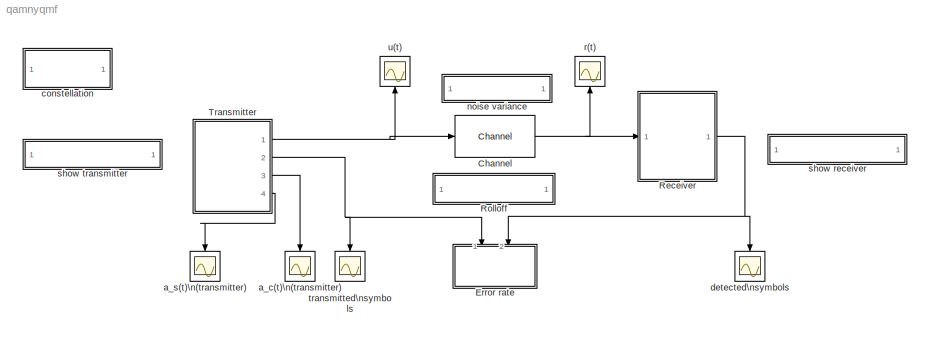
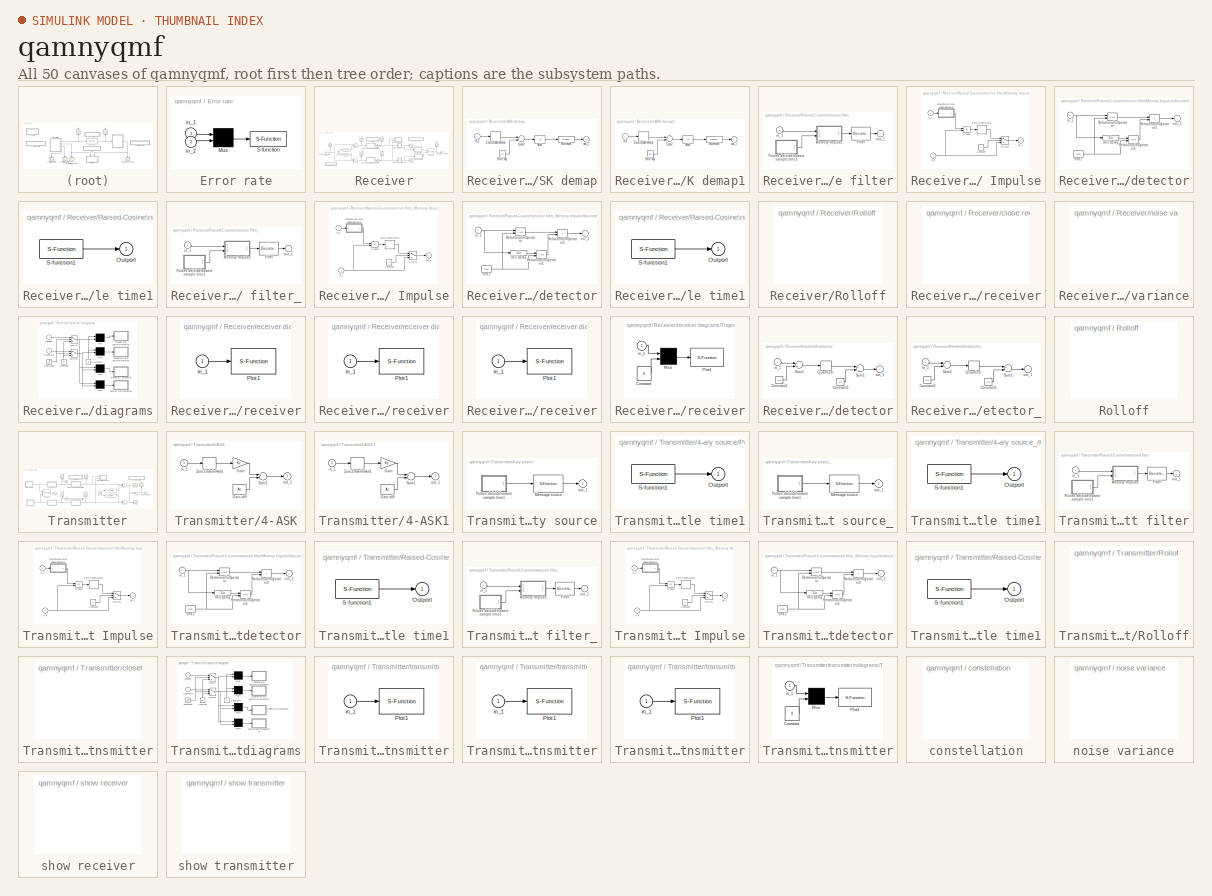
[diagram: thumbnail index - all 50 canvases of the model, root first then tree order]
MODEL qamnyqmf
KIND model
BLOCK [Reference] Channel  REF=librnew/Channel  (lib defined in mdl_aba7bc8d2a37)
  FunctionWithSeparateData = off
  Ports = [1, 1]
  RTWMemSecDataConstants = Inherit from model
  RTWMemSecDataInternal = Inherit from model
  RTWMemSecDataParameters = Inherit from model
  RTWMemSecFuncExecute = Inherit from model
  RTWMemSecFuncInitTerm = Inherit from model
  SID = 1
  ShowPortLabels = none
  SourceBlock = librnew/Channel
  SourceType = AWGN channel, fixed parameter
  SystemSampleTime = -1
  m = 0
  s = 12345
  variance = 0.001
BLOCK [SubSystem] Error rate
  CopyFcn = sbiterr([],[],[],'CopyBlock')
  DeleteFcn = sbiterr([],[],[],'DeleteBlock')
  FunctionWithSeparateData = off
  LoadFcn = sbiterr([],[],[],'LoadBlock')
  MaskCallbackString = |||
  MaskDescription = Use the input data from the 1st port as the reference signal to detect the number of errors and error rate of the 2nd signal.
  MaskDisplay = disp('Error\\nmeter')
  MaskEnableString = on,on,on,on
  MaskHelp = The signal from the first port must be a scalar. The second input port can be a vector with a delay to the first port signal. The comparison happens only at the sampling point.
  MaskHideContents = off
  MaskIconFrame = on
  MaskIconOpaque = on
  MaskIconRotate = none
  MaskIconUnits = autoscale
  MaskInitialization = K=@1;num_lin=@2;TDelay=@3;Sample=@4;
  MaskPortRotate = default
  MaskPromptString = Bit per symbol:|Number of digits on display:|Delay between 1st port and 2nd port:|Sample time (sec):
  MaskStyleString = edit,edit,edit,edit
  MaskToolTipString = on,on,on,on
  MaskTunableValueString = on,on,on,on
  MaskType = Symbol/bit error counter
  MaskValueString = 4|10|12|1
  MaskVisibilityString = on,on,on,on
  MinAlgLoopOccurrences = off
  NameChangeFcn = sbiterr([],[],[],'NameChange')
  Opaque = off
  Ports = [2]
  PropExecContextOutsideSubsystem = off
  RTWSystemCode = Auto
  RequestExecContextInheritance = off
  SID = 2
  ShowPortLabels = none
  StartFcn = sbiterr([],[],[],'Start')
  StopFcn = sbiterr([],[],[],'Stop')
BLOCK [Mux] Error rate/Mux
  Inputs = 2
  Ports = [2, 1]
  SID = 5
BLOCK [S-Function] Error rate/S-function
  EnableBusSupport = off
  FunctionName = sbiterr
  Parameters = num_lin, K, TDelay, Sample
  Ports = [1]
  SID = 6
BLOCK [Inport] Error rate/in_1
  IconDisplay = Port number
  OutDataType = sfix(16)
  OutScaling = 2^0
  SID = 3
BLOCK [Inport] Error rate/in_2
  IconDisplay = Port number
  OutDataType = sfix(16)
  OutScaling = 2^0
  Port = 2
  SID = 4
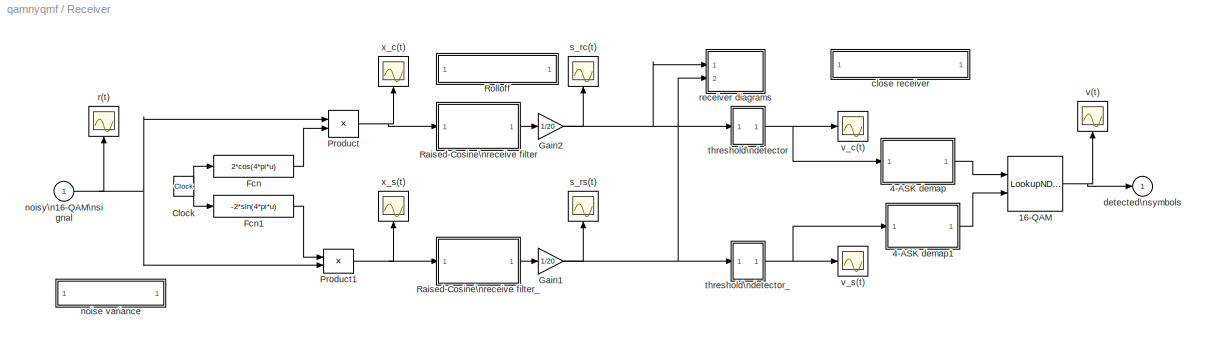
BLOCK [SubSystem] Receiver
  FunctionWithSeparateData = off
  MaskHideContents = off
  MinAlgLoopOccurrences = off
  Opaque = off
  Ports = [1, 1]
  PropExecContextOutsideSubsystem = off
  RTWSystemCode = Auto
  RequestExecContextInheritance = off
  SID = 7
  ShowPortLabels = none
BLOCK [LookupNDDirect] Receiver/16-QAM
  Ports = [2, 1]
  SID = 9
  Table = [0 1 2 3; 4 5 6 7; 8 9 10 11; 12 13 14 15]
BLOCK [SubSystem] Receiver/4-ASK demap
  FunctionWithSeparateData = off
  MaskCallbackString = |
  MaskDescription = Reverse the MASK mapping process\nConvert [-1 1] analog signal to [0, M-1] symbols.
  MaskDisplay = disp('MASK\\ndemapping')
  MaskEnableString = on,on
  MaskHelp = This block demaps a MASK mapped signal back to digit symbols. You can place this block after a amplitude demodulation block. The input of this block is an analog signal in the range [-1, 1]. The demodulation decides the closest integer fitting in [0,M-1] range. When the input symbol interval is a two-elements vector, the second element is offset. The default offset value is 0.
  MaskHideContents = off
  MaskIconFrame = on
  MaskIconOpaque = on
  MaskIconRotate = none
  MaskIconUnits = autoscale
  MaskInitialization = Ac=1;sft=[0:N-1]*Ac*2/(N-1)-Ac;
  MaskPortRotate = default
  MaskPromptString = M-ary number (digit integers in ranger [0, M-1]):|Output symbol interval and offset (sec):
  MaskStyleString = edit,edit
  MaskToolTipString = on,on
  MaskTunableValueString = on,on
  MaskType = MASK demapping
  MaskValueString = 4|[1, .9]
  MaskVariables = N=@1;td=@2;
  MaskVisibilityString = on,on
  MinAlgLoopOccurrences = off
  Opaque = off
  Ports = [1, 1]
  PropExecContextOutsideSubsystem = off
  RTWSystemCode = Auto
  RequestExecContextInheritance = off
  SID = 10
BLOCK [Abs] Receiver/4-ASK demap/Abs
  SID = 12
BLOCK [S-Function] Receiver/4-ASK demap/Minimum
  EnableBusSupport = off
  FunctionName = arymimai
  Parameters = 'min'
  Ports = [1, 1]
  SID = 13
BLOCK [Constant] Receiver/4-ASK demap/Shift key
  OutDataType = sfix(16)
  OutScaling = 2^0
  SID = 14
  Value = sft
BLOCK [Sum] Receiver/4-ASK demap/Sum2
  Inputs = +-
  OutDataType = sfix(16)
  OutScaling = 2^0
  Ports = [2, 1]
  SID = 15
BLOCK [ZeroOrderHold] Receiver/4-ASK demap/Zero-Order\nHold
  SID = 16
  SampleTime = td
BLOCK [Inport] Receiver/4-ASK demap/in_1
  IconDisplay = Port number
  OutDataType = sfix(16)
  OutScaling = 2^0
  SID = 11
BLOCK [Outport] Receiver/4-ASK demap/out_1
  IconDisplay = Port number
  SID = 17
BLOCK [SubSystem] Receiver/4-ASK demap1
  FunctionWithSeparateData = off
  MaskCallbackString = |
  MaskDescription = Reverse the MASK mapping process\nConvert [-1 1] analog signal to [0, M-1] symbols.
  MaskDisplay = disp('MASK\\ndemapping')
  MaskEnableString = on,on
  MaskHelp = This block demaps a MASK mapped signal back to digit symbols. You can place this block after a amplitude demodulation block. The input of this block is an analog signal in the range [-1, 1]. The demodulation decides the closest integer fitting in [0,M-1] range. When the input symbol interval is a two-elements vector, the second element is offset. The default offset value is 0.
  MaskHideContents = off
  MaskIconFrame = on
  MaskIconOpaque = on
  MaskIconRotate = none
  MaskIconUnits = autoscale
  MaskInitialization = Ac=1;sft=[0:N-1]*Ac*2/(N-1)-Ac;
  MaskPortRotate = default
  MaskPromptString = M-ary number (digit integers in ranger [0, M-1]):|Output symbol interval and offset (sec):
  MaskStyleString = edit,edit
  MaskToolTipString = on,on
  MaskTunableValueString = on,on
  MaskType = MASK demapping
  MaskValueString = 4|[1, .9]
  MaskVariables = N=@1;td=@2;
  MaskVisibilityString = on,on
  MinAlgLoopOccurrences = off
  Opaque = off
  Ports = [1, 1]
  PropExecContextOutsideSubsystem = off
  RTWSystemCode = Auto
  RequestExecContextInheritance = off
  SID = 18
BLOCK [Abs] Receiver/4-ASK demap1/Abs
  SID = 20
BLOCK [S-Function] Receiver/4-ASK demap1/Minimum
  EnableBusSupport = off
  FunctionName = arymimai
  Parameters = 'min'
  Ports = [1, 1]
  SID = 21
BLOCK [Constant] Receiver/4-ASK demap1/Shift key
  OutDataType = sfix(16)
  OutScaling = 2^0
  SID = 22
  Value = sft
BLOCK [Sum] Receiver/4-ASK demap1/Sum2
  Inputs = +-
  OutDataType = sfix(16)
  OutScaling = 2^0
  Ports = [2, 1]
  SID = 23
BLOCK [ZeroOrderHold] Receiver/4-ASK demap1/Zero-Order\nHold
  SID = 24
  SampleTime = td
BLOCK [Inport] Receiver/4-ASK demap1/in_1
  IconDisplay = Port number
  OutDataType = sfix(16)
  OutScaling = 2^0
  SID = 19
BLOCK [Outport] Receiver/4-ASK demap1/out_1
  IconDisplay = Port number
  SID = 25
BLOCK [Clock] Receiver/Clock
  Decimation = 10
  SID = 26
BLOCK [Fcn] Receiver/Fcn
  Expr = 2*cos(4*pi*u)
  SID = 27
BLOCK [Fcn] Receiver/Fcn1
  Expr = -2*sin(4*pi*u)
  SID = 28
BLOCK [Gain] Receiver/Gain1
  Gain = 1/20
  OutDataType = sfix(16)
  OutScaling = 2^0
  ParameterDataType = sfix(16)
  ParameterScaling = 2^0
  SID = 29
BLOCK [Gain] Receiver/Gain2
  Gain = 1/20
  OutDataType = sfix(16)
  OutScaling = 2^0
  ParameterDataType = sfix(16)
  ParameterScaling = 2^0
  SID = 30
BLOCK [Product] Receiver/Product
  OutDataType = sfix(16)
  OutScaling = 2^0
  Ports = [2, 1]
  RndMeth = Floor
  SID = 31
BLOCK [Product] Receiver/Product1
  OutDataType = sfix(16)
  OutScaling = 2^0
  Ports = [2, 1]
  RndMeth = Floor
  SID = 32
BLOCK [SubSystem] Receiver/Raised-Cosine\nreceive filter
  FunctionWithSeparateData = off
  MaskCallbackString = |||||
  MaskDescription = Design a raised cosine filter and use it to filter the input signal.
  MaskDisplay = disp('R-C\\nfilter')
  MaskEnableString = on,on,on,on,on,on
  MaskHelp = This block designs a raised cosine filter using the specified parameter. The filter is used to filter the input signal. You can optionally use the sinc filter in the filtering computation.
  MaskHideContents = off
  MaskIconFrame = on
  MaskIconOpaque = on
  MaskIconRotate = none
  MaskIconUnits = autoscale
  MaskInitialization = td=@1;if length(td)>1,off=td(2);td=td(1);else,off=0;end;ts=@2;R=@3;delay=@4;fil=@5;[num,den]=rcosine(1/td(1),1/ts(1),fil,R,delay);x=@6/2;
  MaskPortRotate = default
  MaskPromptString = Symbol interval (sec):|Computation sampling time (sec):|Filter rolloff factor:|Delay step (integer to multiply symbol interval):|Filter type (FIR or IIR) / (Normal or Sqrt):|With or without sinc filter (1 or 0, suggest 1):  <repeated x4 — deduplicated; at blocks: Raised-Cosine\nreceive filter, Raised-Cosine\nreceive filter_, Raised-Cosine\ntransmit filter, Raised-Cosine\ntransmit filter_>
  MaskStyleString = edit,edit,edit,edit,edit,edit
  MaskToolTipString = on,on,on,on,on,on
  MaskTunableValueString = on,on,on,on,on,on
  MaskType = R-C filter
  MaskValueString = 1|.05|0.5|6|'FIR'|0
  MaskVisibilityString = on,on,on,on,on,on
  MinAlgLoopOccurrences = off
  Opaque = off
  Ports = [1, 1]
  PropExecContextOutsideSubsystem = off
  RTWSystemCode = Auto
  RequestExecContextInheritance = off
  SID = 33
  ShowPortLabels = none
BLOCK [DiscreteFilter] Receiver/Raised-Cosine\nreceive filter/Filter
  Denominator = den
  Numerator = num
  Ports = [1, 1]
  SID = 35
  SampleTime = ts
BLOCK [SubSystem] Receiver/Raised-Cosine\nreceive filter/Memory Impulse
  FunctionWithSeparateData = off
  MaskCallbackString = |
  MaskDescription = 1/sinc filter:
  MaskDisplay = disp('1/sinc')
  MaskEnableString = on,on
  MaskHelp = When the threshold is greater than zero, this block outputs an impulse signal, which begins at the raising edge of the second input and lasts the holding time. The impulse holds a constant amplitude, which equals the amplitude of the first input at the begining of the impulse. A clock raising edge will trigger next impulse. When the threshold is less or equal to zero, this block faithfully outputs...<+17ch>  <repeated x4 — deduplicated; at blocks: Memory Impulse>
  MaskHideContents = off
  MaskIconFrame = on
  MaskIconOpaque = on
  MaskIconRotate = none
  MaskIconUnits = autoscale
  MaskInitialization = ts=@1;thr=@2;x=thr>0;
  MaskPortRotate = default
  MaskPromptString = Holding time:|Threshold for clock pulse:
  MaskStyleString = edit,edit
  MaskToolTipString = on,on
  MaskTunableValueString = on,on
  MaskType = Impulse
  MaskValueString = ts|x
  MaskVisibilityString = on,on
  MinAlgLoopOccurrences = off
  Opaque = off
  Ports = [2, 1]
  PropExecContextOutsideSubsystem = off
  RTWSystemCode = Auto
  RequestExecContextInheritance = off
  SID = 36
  ShowPortLabels = none
BLOCK [Constant] Receiver/Raised-Cosine\nreceive filter/Memory Impulse/Constant
  OutDataType = sfix(16)
  OutScaling = 2^0
  SID = 39
  Value = x
BLOCK [Product] Receiver/Raised-Cosine\nreceive filter/Memory Impulse/Product
  OutDataType = sfix(16)
  OutScaling = 2^0
  Ports = [2, 1]
  RndMeth = Floor
  SID = 40
BLOCK [Switch] Receiver/Raised-Cosine\nreceive filter/Memory Impulse/Switch
  SID = 41
  Threshold = .5
BLOCK [ZeroOrderHold] Receiver/Raised-Cosine\nreceive filter/Memory Impulse/Zero-Order\nHold
  SID = 42
  SampleTime = ts
BLOCK [SubSystem] Receiver/Raised-Cosine\nreceive filter/Memory Impulse/discrete\nRising edge\ndetector
  FunctionWithSeparateData = off
  MaskCallbackString = |
  MaskDescription = Rising edge detection:
  MaskDisplay = disp('Edge\\nDetector')
  MaskEnableString = on,on
  MaskHelp = When the input signal rising edge passed the given shreshold, this block outputs one, otherwise outputs zero.
  MaskHideContents = off
  MaskIconFrame = on
  MaskIconOpaque = on
  MaskIconRotate = none
  MaskIconUnits = autoscale
  MaskInitialization = thld=@1;ts=@2;
  MaskPortRotate = default
  MaskPromptString = Threshold:|Sampling time:
  MaskStyleString = edit,edit
  MaskToolTipString = on,on
  MaskTunableValueString = on,on
  MaskType = Edge Detection
  MaskValueString = thr|ts
  MaskVisibilityString = on,on
  MinAlgLoopOccurrences = off
  Opaque = off
  Ports = [1, 1]
  PropExecContextOutsideSubsystem = off
  RTWSystemCode = Auto
  RequestExecContextInheritance = off
  SID = 43
  ShowPortLabels = none
BLOCK [RelationalOperator] Receiver/Raised-Cosine\nreceive filter/Memory Impulse/discrete\nRising edge\ndetector/Relational\nOperator
  Ports = [2, 1]
  SID = 45
BLOCK [RelationalOperator] Receiver/Raised-Cosine\nreceive filter/Memory Impulse/discrete\nRising edge\ndetector/Relational\nOperator1
  Ports = [2, 1]
  SID = 46
BLOCK [RelationalOperator] Receiver/Raised-Cosine\nreceive filter/Memory Impulse/discrete\nRising edge\ndetector/Relational\nOperator2
  Operator = >
  Ports = [2, 1]
  SID = 47
BLOCK [UnitDelay] Receiver/Raised-Cosine\nreceive filter/Memory Impulse/discrete\nRising edge\ndetector/Unit Delay
  SID = 48
  SampleTime = ts
BLOCK [Inport] Receiver/Raised-Cosine\nreceive filter/Memory Impulse/discrete\nRising edge\ndetector/in_1
  IconDisplay = Port number
  OutDataType = sfix(16)
  OutScaling = 2^0
  SID = 44
BLOCK [Constant] Receiver/Raised-Cosine\nreceive filter/Memory Impulse/discrete\nRising edge\ndetector/one1
  OutDataType = sfix(16)
  OutScaling = 2^0
  SID = 49
  Value = thld
BLOCK [Outport] Receiver/Raised-Cosine\nreceive filter/Memory Impulse/discrete\nRising edge\ndetector/out_1
  IconDisplay = Port number
  SID = 50
BLOCK [Inport] Receiver/Raised-Cosine\nreceive filter/Memory Impulse/in_1
  IconDisplay = Port number
  OutDataType = sfix(16)
  OutScaling = 2^0
  SID = 37
BLOCK [Inport] Receiver/Raised-Cosine\nreceive filter/Memory Impulse/in_2
  IconDisplay = Port number
  OutDataType = sfix(16)
  OutScaling = 2^0
  Port = 2
  SID = 38
BLOCK [Outport] Receiver/Raised-Cosine\nreceive filter/Memory Impulse/out_1
  IconDisplay = Port number
  SID = 51
BLOCK [SubSystem] Receiver/Raised-Cosine\nreceive filter/Pulses deivide\nsame sample time1
  FunctionWithSeparateData = off
  MaskCallbackString = ||
  MaskDescription = Vector pulses with sample rate of each pulse as Sample_time ./Divider.
  MaskDisplay = disp('Vector\\nPulse')
  MaskEnableString = on,on,on
  MaskHelp = This block generator a vector pulses. The output length is the same as the vector defined in \"Divider\". The ith element of the output has the sample time Sample_time/Divider(i). All elements in \"Divider\" must be integers.  <repeated x6 — deduplicated; at blocks: Pulses deivide\nsame sample time1>
  MaskHideContents = off
  MaskIconFrame = on
  MaskIconOpaque = on
  MaskIconRotate = none
  MaskIconUnits = autoscale
  MaskInitialization = samp_time=@1;out_divid=@2;offset=@3;
  MaskPortRotate = default
  MaskPromptString = Sample time (scalar, sec):|Divider (integer vector):|Offset (have same dimension as Divider:
  MaskStyleString = edit,edit,edit
  MaskToolTipString = on,on,on
  MaskTunableValueString = on,on,on
  MaskType = Pulse generator
  MaskValueString = td|1|off
  MaskVisibilityString = on,on,on
  MinAlgLoopOccurrences = off
  Opaque = off
  Ports = [0, 1]
  PropExecContextOutsideSubsystem = off
  RTWSystemCode = Auto
  RequestExecContextInheritance = off
  SID = 52
  ShowPortLabels = none
BLOCK [Outport] Receiver/Raised-Cosine\nreceive filter/Pulses deivide\nsame sample time1/Outport
  IconDisplay = Port number
  SID = 54
BLOCK [S-Function] Receiver/Raised-Cosine\nreceive filter/Pulses deivide\nsame sample time1/S-function1
  EnableBusSupport = off
  FunctionName = homopuls
  Parameters = samp_time, out_divid, offset
  Ports = [0, 1]
  SID = 53
BLOCK [Inport] Receiver/Raised-Cosine\nreceive filter/in_1
  IconDisplay = Port number
  OutDataType = sfix(16)
  OutScaling = 2^0
  SID = 34
BLOCK [Outport] Receiver/Raised-Cosine\nreceive filter/out_1
  IconDisplay = Port number
  SID = 55
BLOCK [SubSystem] Receiver/Raised-Cosine\nreceive filter_
  FunctionWithSeparateData = off
  MaskCallbackString = |||||
  MaskDescription = Design a raised cosine filter and use it to filter the input signal.
  MaskDisplay = disp('R-C\\nfilter')
  MaskEnableString = on,on,on,on,on,on
  MaskHelp = This block designs a raised cosine filter using the specified parameter. The filter is used to filter the input signal. You can optionally use the sinc filter in the filtering computation.
  MaskHideContents = off
  MaskIconFrame = on
  MaskIconOpaque = on
  MaskIconRotate = none
  MaskIconUnits = autoscale
  MaskInitialization = td=@1;if length(td)>1,off=td(2);td=td(1);else,off=0;end;ts=@2;R=@3;delay=@4;fil=@5;[num,den]=rcosine(1/td(1),1/ts(1),fil,R,delay);x=@6/2;
  MaskPortRotate = default
  MaskStyleString = edit,edit,edit,edit,edit,edit
  MaskToolTipString = on,on,on,on,on,on
  MaskTunableValueString = on,on,on,on,on,on
  MaskType = R-C filter
  MaskValueString = 1|.05|0.5|6|'FIR'|0
  MaskVisibilityString = on,on,on,on,on,on
  MinAlgLoopOccurrences = off
  Opaque = off
  Ports = [1, 1]
  PropExecContextOutsideSubsystem = off
  RTWSystemCode = Auto
  RequestExecContextInheritance = off
  SID = 56
  ShowPortLabels = none
BLOCK [DiscreteFilter] Receiver/Raised-Cosine\nreceive filter_/Filter
  Denominator = den
  Numerator = num
  Ports = [1, 1]
  SID = 58
  SampleTime = ts
BLOCK [SubSystem] Receiver/Raised-Cosine\nreceive filter_/Memory Impulse
  FunctionWithSeparateData = off
  MaskCallbackString = |
  MaskDescription = 1/sinc filter:
  MaskDisplay = disp('1/sinc')
  MaskEnableString = on,on
  MaskHideContents = off
  MaskIconFrame = on
  MaskIconOpaque = on
  MaskIconRotate = none
  MaskIconUnits = autoscale
  MaskInitialization = ts=@1;thr=@2;x=thr>0;
  MaskPortRotate = default
  MaskPromptString = Holding time:|Threshold for clock pulse:
  MaskStyleString = edit,edit
  MaskToolTipString = on,on
  MaskTunableValueString = on,on
  MaskType = Impulse
  MaskValueString = ts|x
  MaskVisibilityString = on,on
  MinAlgLoopOccurrences = off
  Opaque = off
  Ports = [2, 1]
  PropExecContextOutsideSubsystem = off
  RTWSystemCode = Auto
  RequestExecContextInheritance = off
  SID = 59
  ShowPortLabels = none
BLOCK [Constant] Receiver/Raised-Cosine\nreceive filter_/Memory Impulse/Constant
  OutDataType = sfix(16)
  OutScaling = 2^0
  SID = 62
  Value = x
BLOCK [Product] Receiver/Raised-Cosine\nreceive filter_/Memory Impulse/Product
  OutDataType = sfix(16)
  OutScaling = 2^0
  Ports = [2, 1]
  RndMeth = Floor
  SID = 63
BLOCK [Switch] Receiver/Raised-Cosine\nreceive filter_/Memory Impulse/Switch
  SID = 64
  Threshold = .5
BLOCK [ZeroOrderHold] Receiver/Raised-Cosine\nreceive filter_/Memory Impulse/Zero-Order\nHold
  SID = 65
  SampleTime = ts
BLOCK [SubSystem] Receiver/Raised-Cosine\nreceive filter_/Memory Impulse/discrete\nRising edge\ndetector
  FunctionWithSeparateData = off
  MaskCallbackString = |
  MaskDescription = Rising edge detection:
  MaskDisplay = disp('Edge\\nDetector')
  MaskEnableString = on,on
  MaskHelp = When the input signal rising edge passed the given shreshold, this block outputs one, otherwise outputs zero.
  MaskHideContents = off
  MaskIconFrame = on
  MaskIconOpaque = on
  MaskIconRotate = none
  MaskIconUnits = autoscale
  MaskInitialization = thld=@1;ts=@2;
  MaskPortRotate = default
  MaskPromptString = Threshold:|Sampling time:
  MaskStyleString = edit,edit
  MaskToolTipString = on,on
  MaskTunableValueString = on,on
  MaskType = Edge Detection
  MaskValueString = thr|ts
  MaskVisibilityString = on,on
  MinAlgLoopOccurrences = off
  Opaque = off
  Ports = [1, 1]
  PropExecContextOutsideSubsystem = off
  RTWSystemCode = Auto
  RequestExecContextInheritance = off
  SID = 66
  ShowPortLabels = none
BLOCK [RelationalOperator] Receiver/Raised-Cosine\nreceive filter_/Memory Impulse/discrete\nRising edge\ndetector/Relational\nOperator
  Ports = [2, 1]
  SID = 68
BLOCK [RelationalOperator] Receiver/Raised-Cosine\nreceive filter_/Memory Impulse/discrete\nRising edge\ndetector/Relational\nOperator1
  Ports = [2, 1]
  SID = 69
BLOCK [RelationalOperator] Receiver/Raised-Cosine\nreceive filter_/Memory Impulse/discrete\nRising edge\ndetector/Relational\nOperator2
  Operator = >
  Ports = [2, 1]
  SID = 70
BLOCK [UnitDelay] Receiver/Raised-Cosine\nreceive filter_/Memory Impulse/discrete\nRising edge\ndetector/Unit Delay
  SID = 71
  SampleTime = ts
BLOCK [Inport] Receiver/Raised-Cosine\nreceive filter_/Memory Impulse/discrete\nRising edge\ndetector/in_1
  IconDisplay = Port number
  OutDataType = sfix(16)
  OutScaling = 2^0
  SID = 67
BLOCK [Constant] Receiver/Raised-Cosine\nreceive filter_/Memory Impulse/discrete\nRising edge\ndetector/one1
  OutDataType = sfix(16)
  OutScaling = 2^0
  SID = 72
  Value = thld
BLOCK [Outport] Receiver/Raised-Cosine\nreceive filter_/Memory Impulse/discrete\nRising edge\ndetector/out_1
  IconDisplay = Port number
  SID = 73
BLOCK [Inport] Receiver/Raised-Cosine\nreceive filter_/Memory Impulse/in_1
  IconDisplay = Port number
  OutDataType = sfix(16)
  OutScaling = 2^0
  SID = 60
BLOCK [Inport] Receiver/Raised-Cosine\nreceive filter_/Memory Impulse/in_2
  IconDisplay = Port number
  OutDataType = sfix(16)
  OutScaling = 2^0
  Port = 2
  SID = 61
BLOCK [Outport] Receiver/Raised-Cosine\nreceive filter_/Memory Impulse/out_1
  IconDisplay = Port number
  SID = 74
BLOCK [SubSystem] Receiver/Raised-Cosine\nreceive filter_/Pulses deivide\nsame sample time1
  FunctionWithSeparateData = off
  MaskCallbackString = ||
  MaskDescription = Vector pulses with sample rate of each pulse as Sample_time ./Divider.
  MaskDisplay = disp('Vector\\nPulse')
  MaskEnableString = on,on,on
  MaskHideContents = off
  MaskIconFrame = on
  MaskIconOpaque = on
  MaskIconRotate = none
  MaskIconUnits = autoscale
  MaskInitialization = samp_time=@1;out_divid=@2;offset=@3;
  MaskPortRotate = default
  MaskPromptString = Sample time (scalar, sec):|Divider (integer vector):|Offset (have same dimension as Divider:
  MaskStyleString = edit,edit,edit
  MaskToolTipString = on,on,on
  MaskTunableValueString = on,on,on
  MaskType = Pulse generator
  MaskValueString = td|1|off
  MaskVisibilityString = on,on,on
  MinAlgLoopOccurrences = off
  Opaque = off
  Ports = [0, 1]
  PropExecContextOutsideSubsystem = off
  RTWSystemCode = Auto
  RequestExecContextInheritance = off
  SID = 75
  ShowPortLabels = none
BLOCK [Outport] Receiver/Raised-Cosine\nreceive filter_/Pulses deivide\nsame sample time1/Outport
  IconDisplay = Port number
  SID = 77
BLOCK [S-Function] Receiver/Raised-Cosine\nreceive filter_/Pulses deivide\nsame sample time1/S-function1
  EnableBusSupport = off
  FunctionName = homopuls
  Parameters = samp_time, out_divid, offset
  Ports = [0, 1]
  SID = 76
BLOCK [Inport] Receiver/Raised-Cosine\nreceive filter_/in_1
  IconDisplay = Port number
  OutDataType = sfix(16)
  OutScaling = 2^0
  SID = 57
BLOCK [Outport] Receiver/Raised-Cosine\nreceive filter_/out_1
  IconDisplay = Port number
  SID = 78
BLOCK [SubSystem] Receiver/Rolloff
  FunctionWithSeparateData = off
  MaskDisplay = disp('Rolloff-Factor')
  MaskHideContents = off
  MaskIconFrame = on
  MaskIconOpaque = on
  MaskIconRotate = none
  MaskIconUnits = autoscale
  MaskPortRotate = default
  MaskType = rolloff
  MinAlgLoopOccurrences = off
  Opaque = off
  OpenFcn = setrloff
  Ports = []
  PropExecContextOutsideSubsystem = off
  RTWSystemCode = Auto
  RequestExecContextInheritance = off
  SID = 79
  ShowPortLabels = none
BLOCK [SubSystem] Receiver/close receiver
  FunctionWithSeparateData = off
  MaskDisplay = disp('close receiver')
  MaskHideContents = off
  MaskIconFrame = on
  MaskIconOpaque = on
  MaskIconRotate = none
  MaskIconUnits = autoscale
  MaskPortRotate = default
  MaskType = close
  MinAlgLoopOccurrences = off
  Opaque = off
  OpenFcn = closqamr
  Ports = []
  PropExecContextOutsideSubsystem = off
  RTWSystemCode = Auto
  RequestExecContextInheritance = off
  SID = 80
  ShowPortLabels = none
BLOCK [Outport] Receiver/detected\nsymbols
  IconDisplay = Port number
  SID = 132
BLOCK [SubSystem] Receiver/noise variance
  FunctionWithSeparateData = off
  MaskDisplay = disp('Noise variance')
  MaskHideContents = off
  MaskIconFrame = on
  MaskIconOpaque = on
  MaskIconRotate = none
  MaskIconUnits = autoscale
  MaskPortRotate = default
  MaskType = noise
  MinAlgLoopOccurrences = off
  Opaque = off
  OpenFcn = setnoise
  Ports = []
  PropExecContextOutsideSubsystem = off
  RTWSystemCode = Auto
  RequestExecContextInheritance = off
  SID = 81
  ShowPortLabels = none
BLOCK [Inport] Receiver/noisy\n16-QAM\nsignal
  IconDisplay = Port number
  OutDataType = sfix(16)
  OutScaling = 2^0
  SID = 8
BLOCK [Scope] Receiver/r(t)
  DataFormat = Array
  Floating = off
  NumInputPorts = 1
  Ports = [1]
  SID = 82
  SampleTime = 0
  TimeRange = 25.000000
  YMax = 1.500000
  YMin = -1.500000
BLOCK [SubSystem] Receiver/receiver diagrams
  FunctionWithSeparateData = off
  MaskCallbackString = ||
  MaskDescription = Eye pattern, signal space trajectory and scatter plot
  MaskDisplay = plot(0,0,100,100,x,y)
  MaskEnableString = on,on,on
  MaskHideContents = off
  MaskIconFrame = on
  MaskIconOpaque = on
  MaskIconRotate = none
  MaskIconUnits = autoscale
  MaskInitialization = [x, y] = srcsicon(10);
  MaskPortRotate = default
  MaskPromptString = Plot start time:|Samples per time slot (2*T):|Decision offset:
  MaskStyleString = edit,edit,edit
  MaskToolTipString = on,on,on
  MaskTunableValueString = on,on,on
  MaskType = 2D-Diagrams
  MaskValueString = 12|40|0
  MaskVariables = starttime=@1;anzahl=@2;offset=@3;
  MaskVisibilityString = on,on,on
  MinAlgLoopOccurrences = off
  Opaque = off
  Ports = [2]
  PropExecContextOutsideSubsystem = off
  RTWSystemCode = Auto
  RequestExecContextInheritance = off
  SID = 83
  ShowPortLabels = none
BLOCK [Constant] Receiver/receiver diagrams/Constant
  OutDataType = sfix(16)
  OutScaling = 2^0
  SID = 86
  Value = Inf
BLOCK [Constant] Receiver/receiver diagrams/Constant0
  OutDataType = sfix(16)
  OutScaling = 2^0
  SID = 87
  Value = 0
BLOCK [Inport] Receiver/receiver diagrams/Inphase
  IconDisplay = Port number
  OutDataType = sfix(16)
  OutScaling = 2^0
  SID = 84
BLOCK [SubSystem] Receiver/receiver diagrams/Inphase eye pattern\nreceiver
  CopyFcn = eyesampl([],[],[],'CopyBlock')
  DeleteFcn = eyesampl([],[],[],'DeleteBlock')
  FunctionWithSeparateData = off
  LoadFcn = eyesampl([],[],[],'LoadBlock')
  MaskCallbackString = |||||
  MaskDescription = Produce eye-pattern diagram and/or scatter plot.
  MaskDisplay = plot(0,0,100,100,x,y);
  MaskEnableString = on,on,on,on,on,on
  MaskHelp = This plot opens one, or two plots by assigning the line type parameters. The scatter plot point is selected by the decision point in the first parameter entry. A decision line is drawn in the eye-pattern diagram. The plot is updated at the plot update sample time point.  <repeated x6 — deduplicated; at blocks: Inphase eye pattern\nreceiver, Quadrature eye pattern\nreceiver, Scatter plot\nreceiver, Inphase eye pattern\ntransmitter, Quadrature eye pattern\ntransmitter, Scatter plot\ntransmitter>
  MaskHideContents = off
  MaskIconFrame = on
  MaskIconOpaque = on
  MaskIconRotate = none
  MaskIconUnits = autoscale
  MaskInitialization = time_range=@1;boundary=@2;kept_length=@3;eye_line=@4;scatter_line=@5;two_d_line=@6;[x,y]=srcsicon(10);
  MaskPortRotate = default
  MaskPromptString = [Symbol interval, plot offset, decision point offset]:|Lower and upper bound of in-coming signal (1x2 vector):|Number of saved traces:|Line-type for eye-pattern diagram (0 for no plot):|Line-type for scatter plot (0 for no plot):|Plot update sample time:  <repeated x6 — deduplicated; at blocks: Inphase eye pattern\nreceiver, Quadrature eye pattern\nreceiver, Scatter plot\nreceiver, Inphase eye pattern\ntransmitter, Quadrature eye pattern\ntransmitter, Scatter plot\ntransmitter>
  MaskStyleString = edit,edit,edit,edit,edit,edit
  MaskToolTipString = on,on,on,on,on,on
  MaskTunableValueString = on,on,on,on,on,on
  MaskType = Eye-diagram/scatter plot
  MaskValueString = [2 0 1+offset]|[-1.5 1.5]|0|'w-/r-'|0|2/anzahl
  MaskVisibilityString = on,on,on,on,on,on
  MinAlgLoopOccurrences = off
  NameChangeFcn = eyesampl([],[],[],'NameChange')
  Opaque = off
  Ports = [1]
  PropExecContextOutsideSubsystem = off
  RTWSystemCode = Auto
  RequestExecContextInheritance = off
  SID = 88
  ShowPortLabels = none
  StartFcn = eyesampl([],[],[],'Start')
  StopFcn = eyesampl([],[],[],'Stop')
BLOCK [S-Function] Receiver/receiver diagrams/Inphase eye pattern\nreceiver/Plot1
  EnableBusSupport = off
  FunctionName = eyesampl
  Parameters = time_range, boundary, kept_length, eye_line, scatter_line, two_d_line
  Ports = [1]
  SID = 90
BLOCK [Inport] Receiver/receiver diagrams/Inphase eye pattern\nreceiver/in_1
  IconDisplay = Port number
  OutDataType = sfix(16)
  OutScaling = 2^0
  SID = 89
BLOCK [Mux] Receiver/receiver diagrams/Mux
  Inputs = 2
  Ports = [2, 1]
  SID = 91
BLOCK [Mux] Receiver/receiver diagrams/Mux1
  Inputs = 2
  Ports = [2, 1]
  SID = 92
BLOCK [Mux] Receiver/receiver diagrams/Mux2
  Inputs = 2
  Ports = [2, 1]
  SID = 93
BLOCK [Mux] Receiver/receiver diagrams/Mux3
  Inputs = 2
  Ports = [2, 1]
  SID = 94
BLOCK [Inport] Receiver/receiver diagrams/Quadratur
  IconDisplay = Port number
  OutDataType = sfix(16)
  OutScaling = 2^0
  Port = 2
  SID = 85
BLOCK [SubSystem] Receiver/receiver diagrams/Quadrature eye pattern\nreceiver
  CopyFcn = eyesampl([],[],[],'CopyBlock')
  DeleteFcn = eyesampl([],[],[],'DeleteBlock')
  FunctionWithSeparateData = off
  LoadFcn = eyesampl([],[],[],'LoadBlock')
  MaskCallbackString = |||||
  MaskDescription = Produce eye-pattern diagram and/or scatter plot.
  MaskDisplay = plot(0,0,100,100,x,y);
  MaskEnableString = on,on,on,on,on,on
  MaskHideContents = off
  MaskIconFrame = on
  MaskIconOpaque = on
  MaskIconRotate = none
  MaskIconUnits = autoscale
  MaskInitialization = time_range=@1;boundary=@2;kept_length=@3;eye_line=@4;scatter_line=@5;two_d_line=@6;[x,y]=srcsicon(10);
  MaskPortRotate = default
  MaskStyleString = edit,edit,edit,edit,edit,edit
  MaskToolTipString = on,on,on,on,on,on
  MaskTunableValueString = on,on,on,on,on,on
  MaskType = Eye-diagram/scatter plot
  MaskValueString = [2 0 1+offset]|[-1.5 1.5]|0|'w-/r-'|0|2/anzahl
  MaskVisibilityString = on,on,on,on,on,on
  MinAlgLoopOccurrences = off
  NameChangeFcn = eyesampl([],[],[],'NameChange')
  Opaque = off
  Ports = [1]
  PropExecContextOutsideSubsystem = off
  RTWSystemCode = Auto
  RequestExecContextInheritance = off
  SID = 95
  ShowPortLabels = none
  StartFcn = eyesampl([],[],[],'Start')
  StopFcn = eyesampl([],[],[],'Stop')
BLOCK [S-Function] Receiver/receiver diagrams/Quadrature eye pattern\nreceiver/Plot1
  EnableBusSupport = off
  FunctionName = eyesampl
  Parameters = time_range, boundary, kept_length, eye_line, scatter_line, two_d_line
  Ports = [1]
  SID = 97
BLOCK [Inport] Receiver/receiver diagrams/Quadrature eye pattern\nreceiver/in_1
  IconDisplay = Port number
  OutDataType = sfix(16)
  OutScaling = 2^0
  SID = 96
BLOCK [SubSystem] Receiver/receiver diagrams/Scatter plot\nreceiver
  CopyFcn = eyesampl([],[],[],'CopyBlock')
  DeleteFcn = eyesampl([],[],[],'DeleteBlock')
  FunctionWithSeparateData = off
  LoadFcn = eyesampl([],[],[],'LoadBlock')
  MaskCallbackString = |||||
  MaskDescription = Produce eye-pattern diagram and/or scatter plot.
  MaskDisplay = plot(0,0,100,100,x,y);
  MaskEnableString = on,on,on,on,on,on
  MaskHideContents = off
  MaskIconFrame = on
  MaskIconOpaque = on
  MaskIconRotate = none
  MaskIconUnits = autoscale
  MaskInitialization = time_range=@1;boundary=@2;kept_length=@3;eye_line=@4;scatter_line=@5;two_d_line=@6;[x,y]=srcsicon(10);
  MaskPortRotate = default
  MaskStyleString = edit,edit,edit,edit,edit,edit
  MaskToolTipString = on,on,on,on,on,on
  MaskTunableValueString = on,on,on,on,on,on
  MaskType = Eye-diagram/scatter plot
  MaskValueString = [1 .5 .999]|[-1.5 1.5]|0|0|'b.'|[.5 offset]
  MaskVisibilityString = on,on,on,on,on,on
  MinAlgLoopOccurrences = off
  NameChangeFcn = eyesampl([],[],[],'NameChange')
  Opaque = off
  Ports = [1]
  PropExecContextOutsideSubsystem = off
  RTWSystemCode = Auto
  RequestExecContextInheritance = off
  SID = 98
  ShowPortLabels = none
  StartFcn = eyesampl([],[],[],'Start')
  StopFcn = eyesampl([],[],[],'Stop')
BLOCK [S-Function] Receiver/receiver diagrams/Scatter plot\nreceiver/Plot1
  EnableBusSupport = off
  FunctionName = eyesampl
  Parameters = time_range, boundary, kept_length, eye_line, scatter_line, two_d_line
  Ports = [1]
  SID = 100
BLOCK [Inport] Receiver/receiver diagrams/Scatter plot\nreceiver/in_1
  IconDisplay = Port number
  OutDataType = sfix(16)
  OutScaling = 2^0
  SID = 99
BLOCK [Step] Receiver/receiver diagrams/Step input
  SID = 101
  SampleTime = 1
  Time = starttime
BLOCK [Switch] Receiver/receiver diagrams/Switch
  SID = 102
  Threshold = 1
BLOCK [Switch] Receiver/receiver diagrams/Switch1
  SID = 103
  Threshold = 1
BLOCK [SubSystem] Receiver/receiver diagrams/Trajectory \nreceiver
  CopyFcn = eyediasi([],[],[],'CopyBlock')
  DeleteFcn = eyediasi([],[],[],'DeleteBlock')
  FunctionWithSeparateData = off
  LoadFcn = eyediasi([],[],[],'LoadBlock')
  MaskCallbackString = |||||
  MaskDescription = Produce eye-pattern diagram/scatter\nplot/x-y plot with the rising edge of the second input as the decision line.
  MaskDisplay = plot(0,0,100,100,x,y,v,w);
  MaskEnableString = on,on,on,on,on,on
  MaskHelp = This plot opens one, two, or three plots by assigning the line type parameters. The scatter plot point is selected by the rising edge of a trigger signal. A decision line is drawn at the rising edge of the trigger signal.
  MaskHideContents = off
  MaskIconFrame = on
  MaskIconOpaque = on
  MaskIconRotate = none
  MaskIconUnits = autoscale
  MaskInitialization = time_range=@1;boundary=@2;kept_length=@3;eye_line=@4;scatter_line=@5;two_d_line=@6;[x,y]=srcsicon(10);[v,w]=trigicon(0,25,get_param(gcb,'orientation'),2);
  MaskPortRotate = default
  MaskPromptString = Eye-pattern plot time frame:|Lower and upper bound of in-coming signal (1x2 vector):|Number of saved traces:|Line-type for eye-pattern diagram (0 for no plot):|Line-type for scatter plot (0 for no plot):|Line-type for x-y plot (0 for no plot):
  MaskStyleString = edit,edit,edit,edit,edit,edit
  MaskToolTipString = on,on,on,on,on,on
  MaskTunableValueString = on,on,on,on,on,on
  MaskType = Eye-diagram/scatter plot
  MaskValueString = [2 0 1]|[-1.5 1.5]|0|0|0|'g-'
  MaskVisibilityString = on,on,on,on,on,on
  MinAlgLoopOccurrences = off
  NameChangeFcn = eyediasi([],[],[],'NameChange')
  Opaque = off
  Ports = [1]
  PropExecContextOutsideSubsystem = off
  RTWSystemCode = Auto
  RequestExecContextInheritance = off
  SID = 104
  ShowPortLabels = none
  StartFcn = eyediasi([],[],[],'Start')
  StopFcn = eyediasi([],[],[],'Stop')
BLOCK [Constant] Receiver/receiver diagrams/Trajectory \nreceiver/Constant
  OutDataType = sfix(16)
  OutScaling = 2^0
  SID = 106
  Value = 0
BLOCK [Mux] Receiver/receiver diagrams/Trajectory \nreceiver/Mux
  Inputs = 2
  Ports = [2, 1]
  SID = 107
BLOCK [S-Function] Receiver/receiver diagrams/Trajectory \nreceiver/Plot1
  EnableBusSupport = off
  FunctionName = eyediasi
  Parameters = time_range, boundary, kept_length, eye_line, scatter_line, two_d_line
  Ports = [1]
  SID = 108
BLOCK [Inport] Receiver/receiver diagrams/Trajectory \nreceiver/in_1
  IconDisplay = Port number
  OutDataType = sfix(16)
  OutScaling = 2^0
  SID = 105
BLOCK [Scope] Receiver/s_rc(t)
  DataFormat = Array
  Floating = off
  NumInputPorts = 1
  Ports = [1]
  SID = 109
  SampleTime = 0
  TimeRange = 25.000000
  YMax = 1.500000
  YMin = -1.500000
BLOCK [Scope] Receiver/s_rs(t)
  DataFormat = Array
  Floating = off
  NumInputPorts = 1
  Ports = [1]
  SID = 110
  SampleTime = 0
  TimeRange = 25.000000
  YMax = 1.500000
  YMin = -1.500000
BLOCK [SubSystem] Receiver/threshold\ndetector
  FunctionWithSeparateData = off
  MaskHideContents = off
  MinAlgLoopOccurrences = off
  Opaque = off
  Ports = [1, 1]
  PropExecContextOutsideSubsystem = off
  RTWSystemCode = Auto
  RequestExecContextInheritance = off
  SID = 111
  ShowPortLabels = none
BLOCK [Constant] Receiver/threshold\ndetector/Constant2
  OutDataType = sfix(16)
  OutScaling = 2^0
  SID = 113
  Value = 1/3
BLOCK [Constant] Receiver/threshold\ndetector/Constant3
  OutDataType = sfix(16)
  OutScaling = 2^0
  SID = 114
  Value = 1/3
BLOCK [S-Function] Receiver/threshold\ndetector/Quantizer
  EnableBusSupport = off
  FunctionName = quantize
  MaskDescription = Discretizes input at given interval.
  MaskDisplay = plot([-4,4],[0,0],[0,0],[-4,4],[-3,-2,-2,-1,-1,0,0,1,1,2,2,3,3,4]-0.5,[-3,-3,-2,-2,-1,-1,0,0,1,1,2,2,3,3])
  MaskEnableString = on
  MaskHelp = Quantizes input in given intervals.
  MaskIconFrame = on
  MaskIconOpaque = on
  MaskIconRotate = none
  MaskIconUnits = autoscale
  MaskInitialization = q = @1;
  MaskPortRotate = default
  MaskPromptString = Quantization interval:
  MaskStyleString = edit
  MaskToolTipString = on
  MaskTunableValueString = on
  MaskType = Quantizer
  MaskValueString = 2/3
  MaskVisibilityString = on
  Parameters = q
  Ports = [1, 1]
  SID = 115
BLOCK [Sum] Receiver/threshold\ndetector/Sum1
  Inputs = +-
  OutDataType = sfix(16)
  OutScaling = 2^0
  Ports = [2, 1]
  SID = 116
BLOCK [Sum] Receiver/threshold\ndetector/Sum2
  OutDataType = sfix(16)
  OutScaling = 2^0
  Ports = [2, 1]
  SID = 117
BLOCK [Inport] Receiver/threshold\ndetector/in_1
  IconDisplay = Port number
  OutDataType = sfix(16)
  OutScaling = 2^0
  SID = 112
BLOCK [Outport] Receiver/threshold\ndetector/out_1
  IconDisplay = Port number
  SID = 118
BLOCK [SubSystem] Receiver/threshold\ndetector_
  FunctionWithSeparateData = off
  MaskHideContents = off
  MinAlgLoopOccurrences = off
  Opaque = off
  Ports = [1, 1]
  PropExecContextOutsideSubsystem = off
  RTWSystemCode = Auto
  RequestExecContextInheritance = off
  SID = 119
  ShowPortLabels = none
BLOCK [Constant] Receiver/threshold\ndetector_/Constant2
  OutDataType = sfix(16)
  OutScaling = 2^0
  SID = 121
  Value = 1/3
BLOCK [Constant] Receiver/threshold\ndetector_/Constant3
  OutDataType = sfix(16)
  OutScaling = 2^0
  SID = 122
  Value = 1/3
BLOCK [S-Function] Receiver/threshold\ndetector_/Quantizer
  EnableBusSupport = off
  FunctionName = quantize
  MaskDescription = Discretizes input at given interval.
  MaskDisplay = plot([-4,4],[0,0],[0,0],[-4,4],[-3,-2,-2,-1,-1,0,0,1,1,2,2,3,3,4]-0.5,[-3,-3,-2,-2,-1,-1,0,0,1,1,2,2,3,3])
  MaskEnableString = on
  MaskHelp = Quantizes input in given intervals.
  MaskIconFrame = on
  MaskIconOpaque = on
  MaskIconRotate = none
  MaskIconUnits = autoscale
  MaskInitialization = q = @1;
  MaskPortRotate = default
  MaskPromptString = Quantization interval:
  MaskStyleString = edit
  MaskToolTipString = on
  MaskTunableValueString = on
  MaskType = Quantizer
  MaskValueString = 2/3
  MaskVisibilityString = on
  Parameters = q
  Ports = [1, 1]
  SID = 123
BLOCK [Sum] Receiver/threshold\ndetector_/Sum1
  Inputs = +-
  OutDataType = sfix(16)
  OutScaling = 2^0
  Ports = [2, 1]
  SID = 124
BLOCK [Sum] Receiver/threshold\ndetector_/Sum2
  OutDataType = sfix(16)
  OutScaling = 2^0
  Ports = [2, 1]
  SID = 125
BLOCK [Inport] Receiver/threshold\ndetector_/in_1
  IconDisplay = Port number
  OutDataType = sfix(16)
  OutScaling = 2^0
  SID = 120
BLOCK [Outport] Receiver/threshold\ndetector_/out_1
  IconDisplay = Port number
  SID = 126
BLOCK [Scope] Receiver/v(t)
  DataFormat = Array
  Floating = off
  NumInputPorts = 1
  Ports = [1]
  SID = 127
  SampleTime = 0
  SaveName = ScopeData1
  TimeRange = 25.000000
  YMax = 15
  YMin = -15
BLOCK [Scope] Receiver/v_c(t)
  DataFormat = Array
  Floating = off
  NumInputPorts = 1
  Ports = [1]
  SID = 128
  SampleTime = 0
  TimeRange = 25.000000
  YMax = 1.500000
  YMin = -1.500000
BLOCK [Scope] Receiver/v_s(t)
  DataFormat = Array
  Floating = off
  NumInputPorts = 1
  Ports = [1]
  SID = 129
  SampleTime = 0
  TimeRange = 25.000000
  YMax = 1.500000
  YMin = -1.500000
BLOCK [Scope] Receiver/x_c(t)
  DataFormat = Array
  Floating = off
  NumInputPorts = 1
  Ports = [1]
  SID = 130
  SampleTime = 0
  TimeRange = 25.000000
  YMax = 1.500000
  YMin = -1.500000
BLOCK [Scope] Receiver/x_s(t)
  DataFormat = Array
  Floating = off
  NumInputPorts = 1
  Ports = [1]
  SID = 131
  SampleTime = 0
  TimeRange = 25.000000
  YMax = 1.500000
  YMin = -1.500000
BLOCK [SubSystem] Rolloff
  FunctionWithSeparateData = off
  MaskDisplay = disp('Rolloff-Factor')
  MaskHideContents = off
  MaskIconFrame = on
  MaskIconOpaque = on
  MaskIconRotate = none
  MaskIconUnits = autoscale
  MaskPortRotate = default
  MaskType = rolloff
  MinAlgLoopOccurrences = off
  Opaque = off
  OpenFcn = setrloff
  Ports = []
  PropExecContextOutsideSubsystem = off
  RTWSystemCode = Auto
  RequestExecContextInheritance = off
  SID = 133
  ShowPortLabels = none
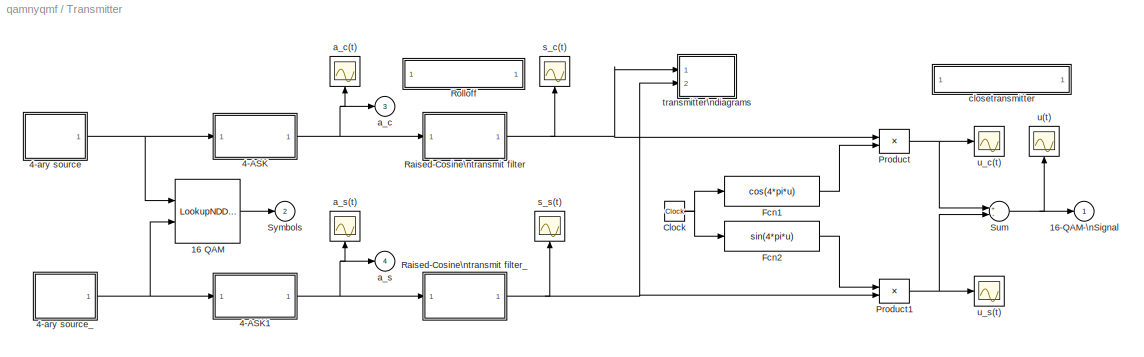
BLOCK [SubSystem] Transmitter
  FunctionWithSeparateData = off
  MaskHideContents = off
  MinAlgLoopOccurrences = off
  Opaque = off
  Ports = [0, 4]
  PropExecContextOutsideSubsystem = off
  RTWSystemCode = Auto
  RequestExecContextInheritance = off
  SID = 134
  ShowPortLabels = none
BLOCK [LookupNDDirect] Transmitter/16 QAM
  Ports = [2, 1]
  SID = 263
  Table = [0 1 2 3; 4 5 6 7; 8 9 10 11; 12 13 14 15]
BLOCK [Outport] Transmitter/16-QAM-\nSignal
  IconDisplay = Port number
  SID = 249
BLOCK [SubSystem] Transmitter/4-ASK
  FunctionWithSeparateData = off
  MaskCallbackString = |
  MaskDescription = Map a digital symbol onto an analog\nsignal in the range [-1, 1] using M-ary\namplitude shift keying modulation mapping.
  MaskDisplay = disp('MASK\\nmapping')
  MaskEnableString = on,on
  MaskHelp = This block maps an input digit signal onto a signal in the range [-1, 1]. The coded signal can be modulated using analog\\nmodulation blocks. Input digits are in the range [0, M-1], where M is the M-ary number. The input symbol interval can be a two-element vector with the second element being offset. The default value offset is 0. Use the MODMAP function to see the constellation.
  MaskHideContents = off
  MaskIconFrame = on
  MaskIconOpaque = on
  MaskIconRotate = none
  MaskIconUnits = autoscale
  MaskInitialization = Ac=1;Kc=Ac*2/(N-1);
  MaskPortRotate = default
  MaskPromptString = M-ary number (input integers in range [0, M-1]):|Input symbol interval and offset (sec):
  MaskStyleString = edit,edit
  MaskToolTipString = on,on
  MaskTunableValueString = on,on
  MaskType = M-ASK mapping
  MaskValueString = 4|1
  MaskVariables = N=@1;td=@2;
  MaskVisibilityString = on,on
  MinAlgLoopOccurrences = off
  Opaque = off
  Ports = [1, 1]
  PropExecContextOutsideSubsystem = off
  RTWSystemCode = Auto
  RequestExecContextInheritance = off
  SID = 136
BLOCK [Gain] Transmitter/4-ASK/Gain
  Gain = Kc
  OutDataType = sfix(16)
  OutScaling = 2^0
  ParameterDataType = sfix(16)
  ParameterScaling = 2^0
  SID = 138
BLOCK [Constant] Transmitter/4-ASK/Gain diff
  OutDataType = sfix(16)
  OutScaling = 2^0
  SID = 139
  Value = Ac
BLOCK [Sum] Transmitter/4-ASK/Sum1
  Inputs = +-
  OutDataType = sfix(16)
  OutScaling = 2^0
  Ports = [2, 1]
  SID = 140
BLOCK [ZeroOrderHold] Transmitter/4-ASK/Zero-Order\nHold
  SID = 141
  SampleTime = td
BLOCK [Inport] Transmitter/4-ASK/in_1
  IconDisplay = Port number
  OutDataType = sfix(16)
  OutScaling = 2^0
  SID = 137
BLOCK [Outport] Transmitter/4-ASK/out_1
  IconDisplay = Port number
  SID = 142
BLOCK [SubSystem] Transmitter/4-ASK1
  FunctionWithSeparateData = off
  MaskCallbackString = |
  MaskDescription = Map a digital symbol onto an analog\nsignal in the range [-1, 1] using M-ary\namplitude shift keying modulation mapping.
  MaskDisplay = disp('MASK\\nmapping')
  MaskEnableString = on,on
  MaskHelp = This block maps an input digit signal onto a signal in the range [-1, 1]. The coded signal can be modulated using analog\\nmodulation blocks. Input digits are in the range [0, M-1], where M is the M-ary number. The input symbol interval can be a two-element vector with the second element being offset. The default value offset is 0. Use the MODMAP function to see the constellation.
  MaskHideContents = off
  MaskIconFrame = on
  MaskIconOpaque = on
  MaskIconRotate = none
  MaskIconUnits = autoscale
  MaskInitialization = Ac=1;Kc=Ac*2/(N-1);
  MaskPortRotate = default
  MaskPromptString = M-ary number (input integers in range [0, M-1]):|Input symbol interval and offset (sec):
  MaskStyleString = edit,edit
  MaskToolTipString = on,on
  MaskTunableValueString = on,on
  MaskType = M-ASK mapping
  MaskValueString = 4|1
  MaskVariables = N=@1;td=@2;
  MaskVisibilityString = on,on
  MinAlgLoopOccurrences = off
  Opaque = off
  Ports = [1, 1]
  PropExecContextOutsideSubsystem = off
  RTWSystemCode = Auto
  RequestExecContextInheritance = off
  SID = 143
BLOCK [Gain] Transmitter/4-ASK1/Gain
  Gain = Kc
  OutDataType = sfix(16)
  OutScaling = 2^0
  ParameterDataType = sfix(16)
  ParameterScaling = 2^0
  SID = 145
BLOCK [Constant] Transmitter/4-ASK1/Gain diff
  OutDataType = sfix(16)
  OutScaling = 2^0
  SID = 146
  Value = Ac
BLOCK [Sum] Transmitter/4-ASK1/Sum1
  Inputs = +-
  OutDataType = sfix(16)
  OutScaling = 2^0
  Ports = [2, 1]
  SID = 147
BLOCK [ZeroOrderHold] Transmitter/4-ASK1/Zero-Order\nHold
  SID = 148
  SampleTime = td
BLOCK [Inport] Transmitter/4-ASK1/in_1
  IconDisplay = Port number
  OutDataType = sfix(16)
  OutScaling = 2^0
  SID = 144
BLOCK [Outport] Transmitter/4-ASK1/out_1
  IconDisplay = Port number
  SID = 149
BLOCK [SubSystem] Transmitter/4-ary source
  FunctionWithSeparateData = off
  MaskCallbackString = |||
  MaskDescription = Read from a workspace variable at\nsampling time point.
  MaskDisplay = plot(0,0,100,100,x,y);disp('Rd wksp')
  MaskEnableString = on,on,on,on
  MaskHelp = This block reads from a workspace variable at a given sample time. The column number is the block output vector length. When the simulation reaches the end of the variable (eof), the block will cyclically output from the first row of the variable or output zeros based on the repeat flag entree.
  MaskHideContents = off
  MaskIconFrame = on
  MaskIconOpaque = on
  MaskIconRotate = none
  MaskIconUnits = autoscale
  MaskInitialization = var=@1;td=@2;ts=td(1);if (length(td)>=2),off=td(2);else off=0;end;cyc=@3;ini=@4;[x,y]=srcsicon(7);
  MaskPortRotate = default
  MaskPromptString = Variable (column_number=block_output_length):|Data output sample time (sec):|Repeat flag (1: repeat read, 0: output zeros after eof).|Initial output:
  MaskStyleString = edit,edit,edit,edit
  MaskToolTipString = on,on,on,on
  MaskTunableValueString = on,on,on,on
  MaskType = Read from workspace
  MaskValueString = randint(2000,1,4)|1|1|1
  MaskVisibilityString = on,on,on,on
  MinAlgLoopOccurrences = off
  Opaque = off
  Ports = [0, 1]
  PropExecContextOutsideSubsystem = off
  RTWSystemCode = Auto
  RequestExecContextInheritance = off
  SID = 150
  ShowPortLabels = none
BLOCK [S-Function] Transmitter/4-ary source/Message source
  EnableBusSupport = off
  FunctionName = trigwksp
  MaskCallbackString = |||
  MaskDescription = The raising edge of input pulse trigger the block output the next row from the workspace variable.
  MaskDisplay = disp('Triggered\\nread')
  MaskEnableString = on,on,on,on
  MaskHelp = This block reads the data from a workspace variable. The output is refreshed at the raising edge of the input pulse.
  MaskIconFrame = on
  MaskIconOpaque = on
  MaskIconRotate = none
  MaskIconUnits = autoscale
  MaskInitialization = var=@1;thd=@2;cyclFlag=@3;ini=@4;
  MaskPortRotate = default
  MaskPromptString = Read the variable:|Threshold for the input pulse:|Cyclic read variable (1) or amend zeros (0).|Output before first trigger:
  MaskStyleString = edit,edit,edit,edit
  MaskToolTipString = on,on,on,on
  MaskTunableValueString = on,on,on,on
  MaskType = Read from workspace
  MaskValueString = var|.1|cyc|ini
  MaskVisibilityString = on,on,on,on
  Parameters = var,thd,cyclFlag,ini
  Ports = [1, 1]
  SID = 151
BLOCK [SubSystem] Transmitter/4-ary source/Pulses deivide\nsame sample time1
  FunctionWithSeparateData = off
  MaskCallbackString = ||
  MaskDescription = Vector pulses with sample rate of each pulse as Sample_time ./Divider.
  MaskDisplay = disp('Vector\\nPulse')
  MaskEnableString = on,on,on
  MaskHideContents = off
  MaskIconFrame = on
  MaskIconOpaque = on
  MaskIconRotate = none
  MaskIconUnits = autoscale
  MaskInitialization = samp_time=@1;out_divid=@2;offset=@3;
  MaskPortRotate = default
  MaskPromptString = Sample time (scalar, sec):|Divider (integer vector):|Offset (have same dimension as Divider:
  MaskStyleString = edit,edit,edit
  MaskToolTipString = on,on,on
  MaskTunableValueString = on,on,on
  MaskType = Pulse generator
  MaskValueString = ts|1|off
  MaskVisibilityString = on,on,on
  MinAlgLoopOccurrences = off
  Opaque = off
  Ports = [0, 1]
  PropExecContextOutsideSubsystem = off
  RTWSystemCode = Auto
  RequestExecContextInheritance = off
  SID = 152
  ShowPortLabels = none
BLOCK [Outport] Transmitter/4-ary source/Pulses deivide\nsame sample time1/Outport
  IconDisplay = Port number
  SID = 154
BLOCK [S-Function] Transmitter/4-ary source/Pulses deivide\nsame sample time1/S-function1
  EnableBusSupport = off
  FunctionName = homopuls
  Parameters = samp_time, out_divid, offset
  Ports = [0, 1]
  SID = 153
BLOCK [Outport] Transmitter/4-ary source/out_1
  IconDisplay = Port number
  SID = 155
BLOCK [SubSystem] Transmitter/4-ary source_
  FunctionWithSeparateData = off
  MaskCallbackString = |||
  MaskDescription = Read from a workspace variable at\nsampling time point.
  MaskDisplay = plot(0,0,100,100,x,y);disp('Rd wksp')
  MaskEnableString = on,on,on,on
  MaskHelp = This block reads from a workspace variable at a given sample time. The column number is the block output vector length. When the simulation reaches the end of the variable (eof), the block will cyclically output from the first row of the variable or output zeros based on the repeat flag entree.
  MaskHideContents = off
  MaskIconFrame = on
  MaskIconOpaque = on
  MaskIconRotate = none
  MaskIconUnits = autoscale
  MaskInitialization = var=@1;td=@2;ts=td(1);if (length(td)>=2),off=td(2);else off=0;end;cyc=@3;ini=@4;[x,y]=srcsicon(7);
  MaskPortRotate = default
  MaskPromptString = Variable (column_number=block_output_length):|Data output sample time (sec):|Repeat flag (1: repeat read, 0: output zeros after eof).|Initial output:
  MaskStyleString = edit,edit,edit,edit
  MaskToolTipString = on,on,on,on
  MaskTunableValueString = on,on,on,on
  MaskType = Read from workspace
  MaskValueString = randint(2000,1,4)|1|1|1
  MaskVisibilityString = on,on,on,on
  MinAlgLoopOccurrences = off
  Opaque = off
  Ports = [0, 1]
  PropExecContextOutsideSubsystem = off
  RTWSystemCode = Auto
  RequestExecContextInheritance = off
  SID = 156
  ShowPortLabels = none
BLOCK [S-Function] Transmitter/4-ary source_/Message source
  EnableBusSupport = off
  FunctionName = trigwksp
  MaskCallbackString = |||
  MaskDescription = The raising edge of input pulse trigger the block output the next row from the workspace variable.
  MaskDisplay = disp('Triggered\\nread')
  MaskEnableString = on,on,on,on
  MaskHelp = This block reads the data from a workspace variable. The output is refreshed at the raising edge of the input pulse.
  MaskIconFrame = on
  MaskIconOpaque = on
  MaskIconRotate = none
  MaskIconUnits = autoscale
  MaskInitialization = var=@1;thd=@2;cyclFlag=@3;ini=@4;
  MaskPortRotate = default
  MaskPromptString = Read the variable:|Threshold for the input pulse:|Cyclic read variable (1) or amend zeros (0).|Output before first trigger:
  MaskStyleString = edit,edit,edit,edit
  MaskToolTipString = on,on,on,on
  MaskTunableValueString = on,on,on,on
  MaskType = Read from workspace
  MaskValueString = var|.1|cyc|ini
  MaskVisibilityString = on,on,on,on
  Parameters = var,thd,cyclFlag,ini
  Ports = [1, 1]
  SID = 157
BLOCK [SubSystem] Transmitter/4-ary source_/Pulses deivide\nsame sample time1
  FunctionWithSeparateData = off
  MaskCallbackString = ||
  MaskDescription = Vector pulses with sample rate of each pulse as Sample_time ./Divider.
  MaskDisplay = disp('Vector\\nPulse')
  MaskEnableString = on,on,on
  MaskHideContents = off
  MaskIconFrame = on
  MaskIconOpaque = on
  MaskIconRotate = none
  MaskIconUnits = autoscale
  MaskInitialization = samp_time=@1;out_divid=@2;offset=@3;
  MaskPortRotate = default
  MaskPromptString = Sample time (scalar, sec):|Divider (integer vector):|Offset (have same dimension as Divider:
  MaskStyleString = edit,edit,edit
  MaskToolTipString = on,on,on
  MaskTunableValueString = on,on,on
  MaskType = Pulse generator
  MaskValueString = ts|1|off
  MaskVisibilityString = on,on,on
  MinAlgLoopOccurrences = off
  Opaque = off
  Ports = [0, 1]
  PropExecContextOutsideSubsystem = off
  RTWSystemCode = Auto
  RequestExecContextInheritance = off
  SID = 158
  ShowPortLabels = none
BLOCK [Outport] Transmitter/4-ary source_/Pulses deivide\nsame sample time1/Outport
  IconDisplay = Port number
  SID = 160
BLOCK [S-Function] Transmitter/4-ary source_/Pulses deivide\nsame sample time1/S-function1
  EnableBusSupport = off
  FunctionName = homopuls
  Parameters = samp_time, out_divid, offset
  Ports = [0, 1]
  SID = 159
BLOCK [Outport] Transmitter/4-ary source_/out_1
  IconDisplay = Port number
  SID = 161
BLOCK [Clock] Transmitter/Clock
  Decimation = 10
  SID = 162
BLOCK [Fcn] Transmitter/Fcn1
  Expr = cos(4*pi*u)
  SID = 163
BLOCK [Fcn] Transmitter/Fcn2
  Expr = sin(4*pi*u)
  SID = 164
BLOCK [Product] Transmitter/Product
  OutDataType = sfix(16)
  OutScaling = 2^0
  Ports = [2, 1]
  RndMeth = Floor
  SID = 165
BLOCK [Product] Transmitter/Product1
  OutDataType = sfix(16)
  OutScaling = 2^0
  Ports = [2, 1]
  RndMeth = Floor
  SID = 166
BLOCK [SubSystem] Transmitter/Raised-Cosine\ntransmit filter
  FunctionWithSeparateData = off
  MaskCallbackString = |||||
  MaskDescription = Design a raised cosine filter and use it to filter the input signal.
  MaskDisplay = disp('R-C\\nfilter')
  MaskEnableString = on,on,on,on,on,on
  MaskHelp = This block designs a raised cosine filter using the specified parameter. The filter is used to filter the input signal. You can optionally use the sinc filter in the filtering computation.
  MaskHideContents = off
  MaskIconFrame = on
  MaskIconOpaque = on
  MaskIconRotate = none
  MaskIconUnits = autoscale
  MaskInitialization = td=@1;if length(td)>1,off=td(2);td=td(1);else,off=0;end;ts=@2;R=@3;delay=@4;fil=@5;[num,den]=rcosine(1/td(1),1/ts(1),fil,R,delay);x=@6/2;
  MaskPortRotate = default
  MaskStyleString = edit,edit,edit,edit,edit,edit
  MaskToolTipString = on,on,on,on,on,on
  MaskTunableValueString = on,on,on,on,on,on
  MaskType = R-C filter
  MaskValueString = 1|.05|0.5|6|'FIR'|1
  MaskVisibilityString = on,on,on,on,on,on
  MinAlgLoopOccurrences = off
  Opaque = off
  Ports = [1, 1]
  PropExecContextOutsideSubsystem = off
  RTWSystemCode = Auto
  RequestExecContextInheritance = off
  SID = 167
  ShowPortLabels = none
BLOCK [DiscreteFilter] Transmitter/Raised-Cosine\ntransmit filter/Filter
  Denominator = den
  Numerator = num
  Ports = [1, 1]
  SID = 169
  SampleTime = ts
BLOCK [SubSystem] Transmitter/Raised-Cosine\ntransmit filter/Memory Impulse
  FunctionWithSeparateData = off
  MaskCallbackString = |
  MaskDescription = 1/sinc filter:
  MaskDisplay = disp('1/sinc')
  MaskEnableString = on,on
  MaskHideContents = off
  MaskIconFrame = on
  MaskIconOpaque = on
  MaskIconRotate = none
  MaskIconUnits = autoscale
  MaskInitialization = ts=@1;thr=@2;x=thr>0;
  MaskPortRotate = default
  MaskPromptString = Holding time:|Threshold for clock pulse:
  MaskStyleString = edit,edit
  MaskToolTipString = on,on
  MaskTunableValueString = on,on
  MaskType = Impulse
  MaskValueString = ts|x
  MaskVisibilityString = on,on
  MinAlgLoopOccurrences = off
  Opaque = off
  Ports = [2, 1]
  PropExecContextOutsideSubsystem = off
  RTWSystemCode = Auto
  RequestExecContextInheritance = off
  SID = 170
  ShowPortLabels = none
BLOCK [Constant] Transmitter/Raised-Cosine\ntransmit filter/Memory Impulse/Constant
  OutDataType = sfix(16)
  OutScaling = 2^0
  SID = 173
  Value = x
BLOCK [Product] Transmitter/Raised-Cosine\ntransmit filter/Memory Impulse/Product
  OutDataType = sfix(16)
  OutScaling = 2^0
  Ports = [2, 1]
  RndMeth = Floor
  SID = 174
BLOCK [Switch] Transmitter/Raised-Cosine\ntransmit filter/Memory Impulse/Switch
  SID = 175
  Threshold = .5
BLOCK [ZeroOrderHold] Transmitter/Raised-Cosine\ntransmit filter/Memory Impulse/Zero-Order\nHold
  SID = 176
  SampleTime = ts
BLOCK [SubSystem] Transmitter/Raised-Cosine\ntransmit filter/Memory Impulse/discrete\nRising edge\ndetector
  FunctionWithSeparateData = off
  MaskCallbackString = |
  MaskDescription = Rising edge detection:
  MaskDisplay = disp('Edge\\nDetector')
  MaskEnableString = on,on
  MaskHelp = When the input signal rising edge passed the given shreshold, this block outputs one, otherwise outputs zero.
  MaskHideContents = off
  MaskIconFrame = on
  MaskIconOpaque = on
  MaskIconRotate = none
  MaskIconUnits = autoscale
  MaskInitialization = thld=@1;ts=@2;
  MaskPortRotate = default
  MaskPromptString = Threshold:|Sampling time:
  MaskStyleString = edit,edit
  MaskToolTipString = on,on
  MaskTunableValueString = on,on
  MaskType = Edge Detection
  MaskValueString = thr|ts
  MaskVisibilityString = on,on
  MinAlgLoopOccurrences = off
  Opaque = off
  Ports = [1, 1]
  PropExecContextOutsideSubsystem = off
  RTWSystemCode = Auto
  RequestExecContextInheritance = off
  SID = 177
  ShowPortLabels = none
BLOCK [RelationalOperator] Transmitter/Raised-Cosine\ntransmit filter/Memory Impulse/discrete\nRising edge\ndetector/Relational\nOperator
  Ports = [2, 1]
  SID = 179
BLOCK [RelationalOperator] Transmitter/Raised-Cosine\ntransmit filter/Memory Impulse/discrete\nRising edge\ndetector/Relational\nOperator1
  Ports = [2, 1]
  SID = 180
BLOCK [RelationalOperator] Transmitter/Raised-Cosine\ntransmit filter/Memory Impulse/discrete\nRising edge\ndetector/Relational\nOperator2
  Operator = >
  Ports = [2, 1]
  SID = 181
BLOCK [UnitDelay] Transmitter/Raised-Cosine\ntransmit filter/Memory Impulse/discrete\nRising edge\ndetector/Unit Delay
  SID = 182
  SampleTime = ts
BLOCK [Inport] Transmitter/Raised-Cosine\ntransmit filter/Memory Impulse/discrete\nRising edge\ndetector/in_1
  IconDisplay = Port number
  OutDataType = sfix(16)
  OutScaling = 2^0
  SID = 178
BLOCK [Constant] Transmitter/Raised-Cosine\ntransmit filter/Memory Impulse/discrete\nRising edge\ndetector/one1
  OutDataType = sfix(16)
  OutScaling = 2^0
  SID = 183
  Value = thld
BLOCK [Outport] Transmitter/Raised-Cosine\ntransmit filter/Memory Impulse/discrete\nRising edge\ndetector/out_1
  IconDisplay = Port number
  SID = 184
BLOCK [Inport] Transmitter/Raised-Cosine\ntransmit filter/Memory Impulse/in_1
  IconDisplay = Port number
  OutDataType = sfix(16)
  OutScaling = 2^0
  SID = 171
BLOCK [Inport] Transmitter/Raised-Cosine\ntransmit filter/Memory Impulse/in_2
  IconDisplay = Port number
  OutDataType = sfix(16)
  OutScaling = 2^0
  Port = 2
  SID = 172
BLOCK [Outport] Transmitter/Raised-Cosine\ntransmit filter/Memory Impulse/out_1
  IconDisplay = Port number
  SID = 185
BLOCK [SubSystem] Transmitter/Raised-Cosine\ntransmit filter/Pulses deivide\nsame sample time1
  FunctionWithSeparateData = off
  MaskCallbackString = ||
  MaskDescription = Vector pulses with sample rate of each pulse as Sample_time ./Divider.
  MaskDisplay = disp('Vector\\nPulse')
  MaskEnableString = on,on,on
  MaskHideContents = off
  MaskIconFrame = on
  MaskIconOpaque = on
  MaskIconRotate = none
  MaskIconUnits = autoscale
  MaskInitialization = samp_time=@1;out_divid=@2;offset=@3;
  MaskPortRotate = default
  MaskPromptString = Sample time (scalar, sec):|Divider (integer vector):|Offset (have same dimension as Divider:
  MaskStyleString = edit,edit,edit
  MaskToolTipString = on,on,on
  MaskTunableValueString = on,on,on
  MaskType = Pulse generator
  MaskValueString = td|1|off
  MaskVisibilityString = on,on,on
  MinAlgLoopOccurrences = off
  Opaque = off
  Ports = [0, 1]
  PropExecContextOutsideSubsystem = off
  RTWSystemCode = Auto
  RequestExecContextInheritance = off
  SID = 186
  ShowPortLabels = none
BLOCK [Outport] Transmitter/Raised-Cosine\ntransmit filter/Pulses deivide\nsame sample time1/Outport
  IconDisplay = Port number
  SID = 188
BLOCK [S-Function] Transmitter/Raised-Cosine\ntransmit filter/Pulses deivide\nsame sample time1/S-function1
  EnableBusSupport = off
  FunctionName = homopuls
  Parameters = samp_time, out_divid, offset
  Ports = [0, 1]
  SID = 187
BLOCK [Inport] Transmitter/Raised-Cosine\ntransmit filter/in_1
  IconDisplay = Port number
  OutDataType = sfix(16)
  OutScaling = 2^0
  SID = 168
BLOCK [Outport] Transmitter/Raised-Cosine\ntransmit filter/out_1
  IconDisplay = Port number
  SID = 189
BLOCK [SubSystem] Transmitter/Raised-Cosine\ntransmit filter_
  FunctionWithSeparateData = off
  MaskCallbackString = |||||
  MaskDescription = Design a raised cosine filter and use it to filter the input signal.
  MaskDisplay = disp('R-C\\nfilter')
  MaskEnableString = on,on,on,on,on,on
  MaskHelp = This block designs a raised cosine filter using the specified parameter. The filter is used to filter the input signal. You can optionally use the sinc filter in the filtering computation.
  MaskHideContents = off
  MaskIconFrame = on
  MaskIconOpaque = on
  MaskIconRotate = none
  MaskIconUnits = autoscale
  MaskInitialization = td=@1;if length(td)>1,off=td(2);td=td(1);else,off=0;end;ts=@2;R=@3;delay=@4;fil=@5;[num,den]=rcosine(1/td(1),1/ts(1),fil,R,delay);x=@6/2;
  MaskPortRotate = default
  MaskStyleString = edit,edit,edit,edit,edit,edit
  MaskToolTipString = on,on,on,on,on,on
  MaskTunableValueString = on,on,on,on,on,on
  MaskType = R-C filter
  MaskValueString = 1|.05|0.5|6|'FIR'|1
  MaskVisibilityString = on,on,on,on,on,on
  MinAlgLoopOccurrences = off
  Opaque = off
  Ports = [1, 1]
  PropExecContextOutsideSubsystem = off
  RTWSystemCode = Auto
  RequestExecContextInheritance = off
  SID = 190
  ShowPortLabels = none
BLOCK [DiscreteFilter] Transmitter/Raised-Cosine\ntransmit filter_/Filter
  Denominator = den
  Numerator = num
  Ports = [1, 1]
  SID = 192
  SampleTime = ts
BLOCK [SubSystem] Transmitter/Raised-Cosine\ntransmit filter_/Memory Impulse
  FunctionWithSeparateData = off
  MaskCallbackString = |
  MaskDescription = 1/sinc filter:
  MaskDisplay = disp('1/sinc')
  MaskEnableString = on,on
  MaskHideContents = off
  MaskIconFrame = on
  MaskIconOpaque = on
  MaskIconRotate = none
  MaskIconUnits = autoscale
  MaskInitialization = ts=@1;thr=@2;x=thr>0;
  MaskPortRotate = default
  MaskPromptString = Holding time:|Threshold for clock pulse:
  MaskStyleString = edit,edit
  MaskToolTipString = on,on
  MaskTunableValueString = on,on
  MaskType = Impulse
  MaskValueString = ts|x
  MaskVisibilityString = on,on
  MinAlgLoopOccurrences = off
  Opaque = off
  Ports = [2, 1]
  PropExecContextOutsideSubsystem = off
  RTWSystemCode = Auto
  RequestExecContextInheritance = off
  SID = 193
  ShowPortLabels = none
BLOCK [Constant] Transmitter/Raised-Cosine\ntransmit filter_/Memory Impulse/Constant
  OutDataType = sfix(16)
  OutScaling = 2^0
  SID = 196
  Value = x
BLOCK [Product] Transmitter/Raised-Cosine\ntransmit filter_/Memory Impulse/Product
  OutDataType = sfix(16)
  OutScaling = 2^0
  Ports = [2, 1]
  RndMeth = Floor
  SID = 197
BLOCK [Switch] Transmitter/Raised-Cosine\ntransmit filter_/Memory Impulse/Switch
  SID = 198
  Threshold = .5
BLOCK [ZeroOrderHold] Transmitter/Raised-Cosine\ntransmit filter_/Memory Impulse/Zero-Order\nHold
  SID = 199
  SampleTime = ts
BLOCK [SubSystem] Transmitter/Raised-Cosine\ntransmit filter_/Memory Impulse/discrete\nRising edge\ndetector
  FunctionWithSeparateData = off
  MaskCallbackString = |
  MaskDescription = Rising edge detection:
  MaskDisplay = disp('Edge\\nDetector')
  MaskEnableString = on,on
  MaskHelp = When the input signal rising edge passed the given shreshold, this block outputs one, otherwise outputs zero.
  MaskHideContents = off
  MaskIconFrame = on
  MaskIconOpaque = on
  MaskIconRotate = none
  MaskIconUnits = autoscale
  MaskInitialization = thld=@1;ts=@2;
  MaskPortRotate = default
  MaskPromptString = Threshold:|Sampling time:
  MaskStyleString = edit,edit
  MaskToolTipString = on,on
  MaskTunableValueString = on,on
  MaskType = Edge Detection
  MaskValueString = thr|ts
  MaskVisibilityString = on,on
  MinAlgLoopOccurrences = off
  Opaque = off
  Ports = [1, 1]
  PropExecContextOutsideSubsystem = off
  RTWSystemCode = Auto
  RequestExecContextInheritance = off
  SID = 200
  ShowPortLabels = none
BLOCK [RelationalOperator] Transmitter/Raised-Cosine\ntransmit filter_/Memory Impulse/discrete\nRising edge\ndetector/Relational\nOperator
  Ports = [2, 1]
  SID = 202
BLOCK [RelationalOperator] Transmitter/Raised-Cosine\ntransmit filter_/Memory Impulse/discrete\nRising edge\ndetector/Relational\nOperator1
  Ports = [2, 1]
  SID = 203
BLOCK [RelationalOperator] Transmitter/Raised-Cosine\ntransmit filter_/Memory Impulse/discrete\nRising edge\ndetector/Relational\nOperator2
  Operator = >
  Ports = [2, 1]
  SID = 204
BLOCK [UnitDelay] Transmitter/Raised-Cosine\ntransmit filter_/Memory Impulse/discrete\nRising edge\ndetector/Unit Delay
  SID = 205
  SampleTime = ts
BLOCK [Inport] Transmitter/Raised-Cosine\ntransmit filter_/Memory Impulse/discrete\nRising edge\ndetector/in_1
  IconDisplay = Port number
  OutDataType = sfix(16)
  OutScaling = 2^0
  SID = 201
BLOCK [Constant] Transmitter/Raised-Cosine\ntransmit filter_/Memory Impulse/discrete\nRising edge\ndetector/one1
  OutDataType = sfix(16)
  OutScaling = 2^0
  SID = 206
  Value = thld
BLOCK [Outport] Transmitter/Raised-Cosine\ntransmit filter_/Memory Impulse/discrete\nRising edge\ndetector/out_1
  IconDisplay = Port number
  SID = 207
BLOCK [Inport] Transmitter/Raised-Cosine\ntransmit filter_/Memory Impulse/in_1
  IconDisplay = Port number
  OutDataType = sfix(16)
  OutScaling = 2^0
  SID = 194
BLOCK [Inport] Transmitter/Raised-Cosine\ntransmit filter_/Memory Impulse/in_2
  IconDisplay = Port number
  OutDataType = sfix(16)
  OutScaling = 2^0
  Port = 2
  SID = 195
BLOCK [Outport] Transmitter/Raised-Cosine\ntransmit filter_/Memory Impulse/out_1
  IconDisplay = Port number
  SID = 208
BLOCK [SubSystem] Transmitter/Raised-Cosine\ntransmit filter_/Pulses deivide\nsame sample time1
  FunctionWithSeparateData = off
  MaskCallbackString = ||
  MaskDescription = Vector pulses with sample rate of each pulse as Sample_time ./Divider.
  MaskDisplay = disp('Vector\\nPulse')
  MaskEnableString = on,on,on
  MaskHideContents = off
  MaskIconFrame = on
  MaskIconOpaque = on
  MaskIconRotate = none
  MaskIconUnits = autoscale
  MaskInitialization = samp_time=@1;out_divid=@2;offset=@3;
  MaskPortRotate = default
  MaskPromptString = Sample time (scalar, sec):|Divider (integer vector):|Offset (have same dimension as Divider:
  MaskStyleString = edit,edit,edit
  MaskToolTipString = on,on,on
  MaskTunableValueString = on,on,on
  MaskType = Pulse generator
  MaskValueString = td|1|off
  MaskVisibilityString = on,on,on
  MinAlgLoopOccurrences = off
  Opaque = off
  Ports = [0, 1]
  PropExecContextOutsideSubsystem = off
  RTWSystemCode = Auto
  RequestExecContextInheritance = off
  SID = 209
  ShowPortLabels = none
BLOCK [Outport] Transmitter/Raised-Cosine\ntransmit filter_/Pulses deivide\nsame sample time1/Outport
  IconDisplay = Port number
  SID = 211
BLOCK [S-Function] Transmitter/Raised-Cosine\ntransmit filter_/Pulses deivide\nsame sample time1/S-function1
  EnableBusSupport = off
  FunctionName = homopuls
  Parameters = samp_time, out_divid, offset
  Ports = [0, 1]
  SID = 210
BLOCK [Inport] Transmitter/Raised-Cosine\ntransmit filter_/in_1
  IconDisplay = Port number
  OutDataType = sfix(16)
  OutScaling = 2^0
  SID = 191
BLOCK [Outport] Transmitter/Raised-Cosine\ntransmit filter_/out_1
  IconDisplay = Port number
  SID = 212
BLOCK [SubSystem] Transmitter/Rolloff
  FunctionWithSeparateData = off
  MaskDisplay = disp('Rolloff-Factor')
  MaskHideContents = off
  MaskIconFrame = on
  MaskIconOpaque = on
  MaskIconRotate = none
  MaskIconUnits = autoscale
  MaskPortRotate = default
  MaskType = rolloff
  MinAlgLoopOccurrences = off
  Opaque = off
  OpenFcn = setrloff
  Ports = []
  PropExecContextOutsideSubsystem = off
  RTWSystemCode = Auto
  RequestExecContextInheritance = off
  SID = 213
  ShowPortLabels = none
BLOCK [Sum] Transmitter/Sum
  Inputs = +-
  OutDataType = sfix(16)
  OutScaling = 2^0
  Ports = [2, 1]
  SID = 214
BLOCK [Outport] Transmitter/Symbols
  IconDisplay = Port number
  Port = 2
  SID = 250
BLOCK [Outport] Transmitter/a_c
  IconDisplay = Port number
  Port = 3
  SID = 251
BLOCK [Scope] Transmitter/a_c(t)
  DataFormat = Array
  Floating = off
  NumInputPorts = 1
  Ports = [1]
  SID = 215
  SampleTime = 0
  TimeRange = 25.000000
  YMax = 1.500000
  YMin = -1.500000
BLOCK [Outport] Transmitter/a_s
  IconDisplay = Port number
  Port = 4
  SID = 252
BLOCK [Scope] Transmitter/a_s(t)
  DataFormat = Array
  Floating = off
  NumInputPorts = 1
  Ports = [1]
  SID = 216
  SampleTime = 0
  TimeRange = 25.000000
  YMax = 1.500000
  YMin = -1.500000
BLOCK [SubSystem] Transmitter/closetransmitter
  FunctionWithSeparateData = off
  MaskDisplay = disp('Close transmitter')
  MaskHideContents = off
  MaskIconFrame = on
  MaskIconOpaque = on
  MaskIconRotate = none
  MaskIconUnits = autoscale
  MaskPortRotate = default
  MaskType = close
  MinAlgLoopOccurrences = off
  Opaque = off
  OpenFcn = closetra
  Ports = []
  PropExecContextOutsideSubsystem = off
  RTWSystemCode = Auto
  RequestExecContextInheritance = off
  SID = 217
  ShowPortLabels = none
BLOCK [Scope] Transmitter/s_c(t)
  DataFormat = Array
  Floating = off
  NumInputPorts = 1
  Ports = [1]
  SID = 218
  SampleTime = 0
  TimeRange = 25.000000
  YMax = 1.500000
  YMin = -1.500000
BLOCK [Scope] Transmitter/s_s(t)
  DataFormat = Array
  Floating = off
  NumInputPorts = 1
  Ports = [1]
  SID = 219
  SampleTime = 0
  TimeRange = 25.000000
  YMax = 1.500000
  YMin = -1.500000
BLOCK [SubSystem] Transmitter/transmitter\ndiagrams
  FunctionWithSeparateData = off
  MaskCallbackString = ||
  MaskDescription = Eye pattern, signal space trajectory and scatter plot
  MaskDisplay = plot(0,0,100,100,x,y)
  MaskEnableString = on,on,on
  MaskHideContents = off
  MaskIconFrame = on
  MaskIconOpaque = on
  MaskIconRotate = none
  MaskIconUnits = autoscale
  MaskInitialization = [x, y] = srcsicon(10);
  MaskPortRotate = default
  MaskPromptString = Plot start time:|Samples per time slot (2*T):|Decision offset:
  MaskStyleString = edit,edit,edit
  MaskToolTipString = on,on,on
  MaskTunableValueString = on,on,on
  MaskType = 2D-Diagrams
  MaskValueString = 6|40|0
  MaskVariables = starttime=@1;anzahl=@2;offset=@3;
  MaskVisibilityString = on,on,on
  MinAlgLoopOccurrences = off
  Opaque = off
  Ports = [2]
  PropExecContextOutsideSubsystem = off
  RTWSystemCode = Auto
  RequestExecContextInheritance = off
  SID = 220
  ShowPortLabels = none
BLOCK [Constant] Transmitter/transmitter\ndiagrams/Constant
  OutDataType = sfix(16)
  OutScaling = 2^0
  SID = 223
  Value = Inf
BLOCK [Constant] Transmitter/transmitter\ndiagrams/Constant0
  OutDataType = sfix(16)
  OutScaling = 2^0
  SID = 224
  Value = 0
BLOCK [Inport] Transmitter/transmitter\ndiagrams/Inphase
  IconDisplay = Port number
  OutDataType = sfix(16)
  OutScaling = 2^0
  SID = 221
BLOCK [SubSystem] Transmitter/transmitter\ndiagrams/Inphase eye pattern\ntransmitter
  CopyFcn = eyesampl([],[],[],'CopyBlock')
  DeleteFcn = eyesampl([],[],[],'DeleteBlock')
  FunctionWithSeparateData = off
  LoadFcn = eyesampl([],[],[],'LoadBlock')
  MaskCallbackString = |||||
  MaskDescription = Produce eye-pattern diagram and/or scatter plot.
  MaskDisplay = plot(0,0,100,100,x,y);
  MaskEnableString = on,on,on,on,on,on
  MaskHideContents = off
  MaskIconFrame = on
  MaskIconOpaque = on
  MaskIconRotate = none
  MaskIconUnits = autoscale
  MaskInitialization = time_range=@1;boundary=@2;kept_length=@3;eye_line=@4;scatter_line=@5;two_d_line=@6;[x,y]=srcsicon(10);
  MaskPortRotate = default
  MaskStyleString = edit,edit,edit,edit,edit,edit
  MaskToolTipString = on,on,on,on,on,on
  MaskTunableValueString = on,on,on,on,on,on
  MaskType = Eye-diagram/scatter plot
  MaskValueString = [2 0 1+offset]|[-1.5 1.5]|0|'w-/r-'|0|2/anzahl
  MaskVisibilityString = on,on,on,on,on,on
  MinAlgLoopOccurrences = off
  NameChangeFcn = eyesampl([],[],[],'NameChange')
  Opaque = off
  Ports = [1]
  PropExecContextOutsideSubsystem = off
  RTWSystemCode = Auto
  RequestExecContextInheritance = off
  SID = 225
  ShowPortLabels = none
  StartFcn = eyesampl([],[],[],'Start')
  StopFcn = eyesampl([],[],[],'Stop')
BLOCK [S-Function] Transmitter/transmitter\ndiagrams/Inphase eye pattern\ntransmitter/Plot1
  EnableBusSupport = off
  FunctionName = eyesampl
  Parameters = time_range, boundary, kept_length, eye_line, scatter_line, two_d_line
  Ports = [1]
  SID = 227
BLOCK [Inport] Transmitter/transmitter\ndiagrams/Inphase eye pattern\ntransmitter/in_1
  IconDisplay = Port number
  OutDataType = sfix(16)
  OutScaling = 2^0
  SID = 226
BLOCK [Mux] Transmitter/transmitter\ndiagrams/Mux
  Inputs = 2
  Ports = [2, 1]
  SID = 228
BLOCK [Mux] Transmitter/transmitter\ndiagrams/Mux1
  Inputs = 2
  Ports = [2, 1]
  SID = 229
BLOCK [Mux] Transmitter/transmitter\ndiagrams/Mux2
  Inputs = 2
  Ports = [2, 1]
  SID = 230
BLOCK [Mux] Transmitter/transmitter\ndiagrams/Mux3
  Inputs = 2
  Ports = [2, 1]
  SID = 231
BLOCK [Inport] Transmitter/transmitter\ndiagrams/Quadratur
  IconDisplay = Port number
  OutDataType = sfix(16)
  OutScaling = 2^0
  Port = 2
  SID = 222
BLOCK [SubSystem] Transmitter/transmitter\ndiagrams/Quadrature eye pattern\ntransmitter
  CopyFcn = eyesampl([],[],[],'CopyBlock')
  DeleteFcn = eyesampl([],[],[],'DeleteBlock')
  FunctionWithSeparateData = off
  LoadFcn = eyesampl([],[],[],'LoadBlock')
  MaskCallbackString = |||||
  MaskDescription = Produce eye-pattern diagram and/or scatter plot.
  MaskDisplay = plot(0,0,100,100,x,y);
  MaskEnableString = on,on,on,on,on,on
  MaskHideContents = off
  MaskIconFrame = on
  MaskIconOpaque = on
  MaskIconRotate = none
  MaskIconUnits = autoscale
  MaskInitialization = time_range=@1;boundary=@2;kept_length=@3;eye_line=@4;scatter_line=@5;two_d_line=@6;[x,y]=srcsicon(10);
  MaskPortRotate = default
  MaskStyleString = edit,edit,edit,edit,edit,edit
  MaskToolTipString = on,on,on,on,on,on
  MaskTunableValueString = on,on,on,on,on,on
  MaskType = Eye-diagram/scatter plot
  MaskValueString = [2 0 1+offset]|[-1.5 1.5]|0|'w-/r-'|0|2/anzahl
  MaskVisibilityString = on,on,on,on,on,on
  MinAlgLoopOccurrences = off
  NameChangeFcn = eyesampl([],[],[],'NameChange')
  Opaque = off
  Ports = [1]
  PropExecContextOutsideSubsystem = off
  RTWSystemCode = Auto
  RequestExecContextInheritance = off
  SID = 232
  ShowPortLabels = none
  StartFcn = eyesampl([],[],[],'Start')
  StopFcn = eyesampl([],[],[],'Stop')
BLOCK [S-Function] Transmitter/transmitter\ndiagrams/Quadrature eye pattern\ntransmitter/Plot1
  EnableBusSupport = off
  FunctionName = eyesampl
  Parameters = time_range, boundary, kept_length, eye_line, scatter_line, two_d_line
  Ports = [1]
  SID = 234
BLOCK [Inport] Transmitter/transmitter\ndiagrams/Quadrature eye pattern\ntransmitter/in_1
  IconDisplay = Port number
  OutDataType = sfix(16)
  OutScaling = 2^0
  SID = 233
BLOCK [SubSystem] Transmitter/transmitter\ndiagrams/Scatter plot\ntransmitter
  CopyFcn = eyesampl([],[],[],'CopyBlock')
  DeleteFcn = eyesampl([],[],[],'DeleteBlock')
  FunctionWithSeparateData = off
  LoadFcn = eyesampl([],[],[],'LoadBlock')
  MaskCallbackString = |||||
  MaskDescription = Produce eye-pattern diagram and/or scatter plot.
  MaskDisplay = plot(0,0,100,100,x,y);
  MaskEnableString = on,on,on,on,on,on
  MaskHideContents = off
  MaskIconFrame = on
  MaskIconOpaque = on
  MaskIconRotate = none
  MaskIconUnits = autoscale
  MaskInitialization = time_range=@1;boundary=@2;kept_length=@3;eye_line=@4;scatter_line=@5;two_d_line=@6;[x,y]=srcsicon(10);
  MaskPortRotate = default
  MaskStyleString = edit,edit,edit,edit,edit,edit
  MaskToolTipString = on,on,on,on,on,on
  MaskTunableValueString = on,on,on,on,on,on
  MaskType = Eye-diagram/scatter plot
  MaskValueString = [1 .5 .999]|[-1.5 1.5]|0|0|'b.'|[.5 offset]
  MaskVisibilityString = on,on,on,on,on,on
  MinAlgLoopOccurrences = off
  NameChangeFcn = eyesampl([],[],[],'NameChange')
  Opaque = off
  Ports = [1]
  PropExecContextOutsideSubsystem = off
  RTWSystemCode = Auto
  RequestExecContextInheritance = off
  SID = 235
  ShowPortLabels = none
  StartFcn = eyesampl([],[],[],'Start')
  StopFcn = eyesampl([],[],[],'Stop')
BLOCK [S-Function] Transmitter/transmitter\ndiagrams/Scatter plot\ntransmitter/Plot1
  EnableBusSupport = off
  FunctionName = eyesampl
  Parameters = time_range, boundary, kept_length, eye_line, scatter_line, two_d_line
  Ports = [1]
  SID = 237
BLOCK [Inport] Transmitter/transmitter\ndiagrams/Scatter plot\ntransmitter/in_1
  IconDisplay = Port number
  OutDataType = sfix(16)
  OutScaling = 2^0
  SID = 236
BLOCK [Step] Transmitter/transmitter\ndiagrams/Step input
  SID = 238
  SampleTime = 1
  Time = starttime
BLOCK [Switch] Transmitter/transmitter\ndiagrams/Switch
  SID = 239
  Threshold = 1
BLOCK [Switch] Transmitter/transmitter\ndiagrams/Switch1
  SID = 240
  Threshold = 1
BLOCK [SubSystem] Transmitter/transmitter\ndiagrams/Trajectory\ntransmitter
  CopyFcn = eyediasi([],[],[],'CopyBlock')
  DeleteFcn = eyediasi([],[],[],'DeleteBlock')
  FunctionWithSeparateData = off
  LoadFcn = eyediasi([],[],[],'LoadBlock')
  MaskCallbackString = |||||
  MaskDescription = Produce eye-pattern diagram/scatter\nplot/x-y plot with the rising edge of the second input as the decision line.
  MaskDisplay = plot(0,0,100,100,x,y,v,w);
  MaskEnableString = on,on,on,on,on,on
  MaskHelp = This plot opens one, two, or three plots by assigning the line type parameters. The scatter plot point is selected by the rising edge of a trigger signal. A decision line is drawn at the rising edge of the trigger signal.
  MaskHideContents = off
  MaskIconFrame = on
  MaskIconOpaque = on
  MaskIconRotate = none
  MaskIconUnits = autoscale
  MaskInitialization = time_range=@1;boundary=@2;kept_length=@3;eye_line=@4;scatter_line=@5;two_d_line=@6;[x,y]=srcsicon(10);[v,w]=trigicon(0,25,get_param(gcb,'orientation'),2);
  MaskPortRotate = default
  MaskPromptString = Eye-pattern plot time frame:|Lower and upper bound of in-coming signal (1x2 vector):|Number of saved traces:|Line-type for eye-pattern diagram (0 for no plot):|Line-type for scatter plot (0 for no plot):|Line-type for x-y plot (0 for no plot):
  MaskStyleString = edit,edit,edit,edit,edit,edit
  MaskToolTipString = on,on,on,on,on,on
  MaskTunableValueString = on,on,on,on,on,on
  MaskType = Eye-diagram/scatter plot
  MaskValueString = [2 0 1]|[-1.5 1.5]|0|0|0|'g-'
  MaskVisibilityString = on,on,on,on,on,on
  MinAlgLoopOccurrences = off
  NameChangeFcn = eyediasi([],[],[],'NameChange')
  Opaque = off
  Ports = [1]
  PropExecContextOutsideSubsystem = off
  RTWSystemCode = Auto
  RequestExecContextInheritance = off
  SID = 241
  ShowPortLabels = none
  StartFcn = eyediasi([],[],[],'Start')
  StopFcn = eyediasi([],[],[],'Stop')
BLOCK [Constant] Transmitter/transmitter\ndiagrams/Trajectory\ntransmitter/Constant
  OutDataType = sfix(16)
  OutScaling = 2^0
  SID = 243
  Value = 0
BLOCK [Mux] Transmitter/transmitter\ndiagrams/Trajectory\ntransmitter/Mux
  Inputs = 2
  Ports = [2, 1]
  SID = 244
BLOCK [S-Function] Transmitter/transmitter\ndiagrams/Trajectory\ntransmitter/Plot1
  EnableBusSupport = off
  FunctionName = eyediasi
  Parameters = time_range, boundary, kept_length, eye_line, scatter_line, two_d_line
  Ports = [1]
  SID = 245
BLOCK [Inport] Transmitter/transmitter\ndiagrams/Trajectory\ntransmitter/in_1
  IconDisplay = Port number
  OutDataType = sfix(16)
  OutScaling = 2^0
  SID = 242
BLOCK [Scope] Transmitter/u(t)
  DataFormat = Array
  Floating = off
  NumInputPorts = 1
  Ports = [1]
  SID = 246
  SampleTime = 0
  TimeRange = 25.000000
  YMax = 1.500000
  YMin = -1.500000
BLOCK [Scope] Transmitter/u_c(t)
  DataFormat = Array
  Floating = off
  NumInputPorts = 1
  Ports = [1]
  SID = 247
  SampleTime = 0
  TimeRange = 25.000000
  YMax = 1.500000
  YMin = -1.500000
BLOCK [Scope] Transmitter/u_s(t)
  DataFormat = Array
  Floating = off
  NumInputPorts = 1
  Ports = [1]
  SID = 248
  SampleTime = 0
  TimeRange = 25.000000
  YMax = 1.500000
  YMin = -1.500000
BLOCK [Scope] a_c(t)\n(transmitter)
  DataFormat = Array
  Floating = off
  NumInputPorts = 1
  Ports = [1]
  SID = 253
  SampleTime = 0
  TimeRange = 25.000000
  YMax = 1.5
  YMin = -1.5
BLOCK [Scope] a_s(t)\n(transmitter)
  DataFormat = Array
  Floating = off
  NumInputPorts = 1
  Ports = [1]
  SID = 254
  SampleTime = 0
  TimeRange = 25.000000
  YMax = 1.5
  YMin = -1.5
BLOCK [SubSystem] constellation
  FunctionWithSeparateData = off
  MaskDisplay = disp('Signal Space \\n Constellation')
  MaskHideContents = off
  MaskIconFrame = on
  MaskIconOpaque = on
  MaskIconRotate = none
  MaskIconUnits = autoscale
  MaskPortRotate = default
  MaskType = constellation
  MinAlgLoopOccurrences = off
  Opaque = off
  OpenFcn = cplotqam(16)
  Ports = []
  PropExecContextOutsideSubsystem = off
  RTWSystemCode = Auto
  RequestExecContextInheritance = off
  SID = 255
  ShowPortLabels = none
BLOCK [Scope] detected\nsymbols
  DataFormat = Array
  Floating = off
  NumInputPorts = 1
  Ports = [1]
  SID = 256
  SampleTime = 0
  TimeRange = 25.000000
  YMax = 15
  YMin = -15
BLOCK [SubSystem] noise variance
  FunctionWithSeparateData = off
  MaskDisplay = disp('Noise variance')
  MaskHideContents = off
  MaskIconFrame = on
  MaskIconOpaque = on
  MaskIconRotate = none
  MaskIconUnits = autoscale
  MaskPortRotate = default
  MaskType = noise
  MinAlgLoopOccurrences = off
  Opaque = off
  OpenFcn = setnoise
  Ports = []
  PropExecContextOutsideSubsystem = off
  RTWSystemCode = Auto
  RequestExecContextInheritance = off
  SID = 257
  ShowPortLabels = none
BLOCK [Scope] r(t)
  DataFormat = Array
  Floating = off
  NumInputPorts = 1
  Ports = [1]
  SID = 258
  SampleTime = 0
  TimeRange = 25.000000
  YMax = 1.5
  YMin = -1.5
BLOCK [SubSystem] show receiver
  FunctionWithSeparateData = off
  MaskDisplay = disp('Receiver')
  MaskHideContents = off
  MaskIconFrame = on
  MaskIconOpaque = on
  MaskIconRotate = none
  MaskIconUnits = autoscale
  MaskPortRotate = default
  MaskType = open
  MinAlgLoopOccurrences = off
  Opaque = off
  OpenFcn = showqamr
  Ports = []
  PropExecContextOutsideSubsystem = off
  RTWSystemCode = Auto
  RequestExecContextInheritance = off
  SID = 259
  ShowPortLabels = none
BLOCK [SubSystem] show transmitter
  FunctionWithSeparateData = off
  MaskDisplay = disp('Transmitter')
  MaskHideContents = off
  MaskIconFrame = on
  MaskIconOpaque = on
  MaskIconRotate = none
  MaskIconUnits = autoscale
  MaskPortRotate = default
  MaskType = open
  MinAlgLoopOccurrences = off
  Opaque = off
  OpenFcn = showqamt
  Ports = []
  PropExecContextOutsideSubsystem = off
  RTWSystemCode = Auto
  RequestExecContextInheritance = off
  SID = 260
  ShowPortLabels = none
BLOCK [Scope] transmitted\nsymbols
  DataFormat = Array
  Floating = off
  NumInputPorts = 1
  Ports = [1]
  SID = 261
  SampleTime = 0
  TimeRange = 25.000000
  YMax = 15
  YMin = -15
BLOCK [Scope] u(t)
  DataFormat = Array
  Floating = off
  NumInputPorts = 1
  Ports = [1]
  SID = 262
  SampleTime = 0
  TimeRange = 25.000000
  YMax = 1.5
  YMin = -1.5
NET Channel:1 -> Receiver:1, r(t):1
LINE Error rate/Mux:1 -> Error rate/S-function:1
LINE Error rate/in_1:1 -> Error rate/Mux:1
LINE Error rate/in_2:1 -> Error rate/Mux:2
NET Receiver/16-QAM:1 -> Receiver/detected\nsymbols:1, Receiver/v(t):1
LINE Receiver/4-ASK demap/Abs:1 -> Receiver/4-ASK demap/Minimum:1
LINE Receiver/4-ASK demap/Minimum:1 -> Receiver/4-ASK demap/out_1:1
LINE Receiver/4-ASK demap/Shift key:1 -> Receiver/4-ASK demap/Sum2:2
LINE Receiver/4-ASK demap/Sum2:1 -> Receiver/4-ASK demap/Abs:1
LINE Receiver/4-ASK demap/Zero-Order\nHold:1 -> Receiver/4-ASK demap/Sum2:1
LINE Receiver/4-ASK demap/in_1:1 -> Receiver/4-ASK demap/Zero-Order\nHold:1
LINE Receiver/4-ASK demap1/Abs:1 -> Receiver/4-ASK demap1/Minimum:1
LINE Receiver/4-ASK demap1/Minimum:1 -> Receiver/4-ASK demap1/out_1:1
LINE Receiver/4-ASK demap1/Shift key:1 -> Receiver/4-ASK demap1/Sum2:2
LINE Receiver/4-ASK demap1/Sum2:1 -> Receiver/4-ASK demap1/Abs:1
LINE Receiver/4-ASK demap1/Zero-Order\nHold:1 -> Receiver/4-ASK demap1/Sum2:1
LINE Receiver/4-ASK demap1/in_1:1 -> Receiver/4-ASK demap1/Zero-Order\nHold:1
LINE Receiver/4-ASK demap1:1 -> Receiver/16-QAM:2
LINE Receiver/4-ASK demap:1 -> Receiver/16-QAM:1
NET Receiver/Clock:1 -> Receiver/Fcn1:1, Receiver/Fcn:1
LINE Receiver/Fcn1:1 -> Receiver/Product1:1
LINE Receiver/Fcn:1 -> Receiver/Product:2
NET Receiver/Gain1:1 -> Receiver/receiver diagrams:2, Receiver/s_rs(t):1, Receiver/threshold\ndetector_:1
NET Receiver/Gain2:1 -> Receiver/receiver diagrams:1, Receiver/s_rc(t):1, Receiver/threshold\ndetector:1
NET Receiver/Product1:1 -> Receiver/Raised-Cosine\nreceive filter_:1, Receiver/x_s(t):1
NET Receiver/Product:1 -> Receiver/Raised-Cosine\nreceive filter:1, Receiver/x_c(t):1
LINE Receiver/Raised-Cosine\nreceive filter/Filter:1 -> Receiver/Raised-Cosine\nreceive filter/out_1:1
LINE Receiver/Raised-Cosine\nreceive filter/Memory Impulse/Constant:1 -> Receiver/Raised-Cosine\nreceive filter/Memory Impulse/Switch:2
LINE Receiver/Raised-Cosine\nreceive filter/Memory Impulse/Product:1 -> Receiver/Raised-Cosine\nreceive filter/Memory Impulse/Zero-Order\nHold:1
LINE Receiver/Raised-Cosine\nreceive filter/Memory Impulse/Switch:1 -> Receiver/Raised-Cosine\nreceive filter/Memory Impulse/out_1:1
LINE Receiver/Raised-Cosine\nreceive filter/Memory Impulse/Zero-Order\nHold:1 -> Receiver/Raised-Cosine\nreceive filter/Memory Impulse/Switch:1
LINE Receiver/Raised-Cosine\nreceive filter/Memory Impulse/discrete\nRising edge\ndetector/Relational\nOperator1:1 -> Receiver/Raised-Cosine\nreceive filter/Memory Impulse/discrete\nRising edge\ndetector/Relational\nOperator2:2
LINE Receiver/Raised-Cosine\nreceive filter/Memory Impulse/discrete\nRising edge\ndetector/Relational\nOperator2:1 -> Receiver/Raised-Cosine\nreceive filter/Memory Impulse/discrete\nRising edge\ndetector/out_1:1
LINE Receiver/Raised-Cosine\nreceive filter/Memory Impulse/discrete\nRising edge\ndetector/Relational\nOperator:1 -> Receiver/Raised-Cosine\nreceive filter/Memory Impulse/discrete\nRising edge\ndetector/Relational\nOperator2:1
LINE Receiver/Raised-Cosine\nreceive filter/Memory Impulse/discrete\nRising edge\ndetector/Unit Delay:1 -> Receiver/Raised-Cosine\nreceive filter/Memory Impulse/discrete\nRising edge\ndetector/Relational\nOperator1:1
NET Receiver/Raised-Cosine\nreceive filter/Memory Impulse/discrete\nRising edge\ndetector/in_1:1 -> Receiver/Raised-Cosine\nreceive filter/Memory Impulse/discrete\nRising edge\ndetector/Relational\nOperator:1, Receiver/Raised-Cosine\nreceive filter/Memory Impulse/discrete\nRising edge\ndetector/Unit Delay:1
NET Receiver/Raised-Cosine\nreceive filter/Memory Impulse/discrete\nRising edge\ndetector/one1:1 -> Receiver/Raised-Cosine\nreceive filter/Memory Impulse/discrete\nRising edge\ndetector/Relational\nOperator1:2, Receiver/Raised-Cosine\nreceive filter/Memory Impulse/discrete\nRising edge\ndetector/Relational\nOperator:2
LINE Receiver/Raised-Cosine\nreceive filter/Memory Impulse/discrete\nRising edge\ndetector:1 -> Receiver/Raised-Cosine\nreceive filter/Memory Impulse/Product:1
NET Receiver/Raised-Cosine\nreceive filter/Memory Impulse/in_1:1 -> Receiver/Raised-Cosine\nreceive filter/Memory Impulse/Product:2, Receiver/Raised-Cosine\nreceive filter/Memory Impulse/Switch:3
LINE Receiver/Raised-Cosine\nreceive filter/Memory Impulse/in_2:1 -> Receiver/Raised-Cosine\nreceive filter/Memory Impulse/discrete\nRising edge\ndetector:1
LINE Receiver/Raised-Cosine\nreceive filter/Memory Impulse:1 -> Receiver/Raised-Cosine\nreceive filter/Filter:1
LINE Receiver/Raised-Cosine\nreceive filter/Pulses deivide\nsame sample time1/S-function1:1 -> Receiver/Raised-Cosine\nreceive filter/Pulses deivide\nsame sample time1/Outport:1
LINE Receiver/Raised-Cosine\nreceive filter/Pulses deivide\nsame sample time1:1 -> Receiver/Raised-Cosine\nreceive filter/Memory Impulse:2
LINE Receiver/Raised-Cosine\nreceive filter/in_1:1 -> Receiver/Raised-Cosine\nreceive filter/Memory Impulse:1
LINE Receiver/Raised-Cosine\nreceive filter:1 -> Receiver/Gain2:1
LINE Receiver/Raised-Cosine\nreceive filter_/Filter:1 -> Receiver/Raised-Cosine\nreceive filter_/out_1:1
LINE Receiver/Raised-Cosine\nreceive filter_/Memory Impulse/Constant:1 -> Receiver/Raised-Cosine\nreceive filter_/Memory Impulse/Switch:2
LINE Receiver/Raised-Cosine\nreceive filter_/Memory Impulse/Product:1 -> Receiver/Raised-Cosine\nreceive filter_/Memory Impulse/Zero-Order\nHold:1
LINE Receiver/Raised-Cosine\nreceive filter_/Memory Impulse/Switch:1 -> Receiver/Raised-Cosine\nreceive filter_/Memory Impulse/out_1:1
LINE Receiver/Raised-Cosine\nreceive filter_/Memory Impulse/Zero-Order\nHold:1 -> Receiver/Raised-Cosine\nreceive filter_/Memory Impulse/Switch:1
LINE Receiver/Raised-Cosine\nreceive filter_/Memory Impulse/discrete\nRising edge\ndetector/Relational\nOperator1:1 -> Receiver/Raised-Cosine\nreceive filter_/Memory Impulse/discrete\nRising edge\ndetector/Relational\nOperator2:2
LINE Receiver/Raised-Cosine\nreceive filter_/Memory Impulse/discrete\nRising edge\ndetector/Relational\nOperator2:1 -> Receiver/Raised-Cosine\nreceive filter_/Memory Impulse/discrete\nRising edge\ndetector/out_1:1
LINE Receiver/Raised-Cosine\nreceive filter_/Memory Impulse/discrete\nRising edge\ndetector/Relational\nOperator:1 -> Receiver/Raised-Cosine\nreceive filter_/Memory Impulse/discrete\nRising edge\ndetector/Relational\nOperator2:1
LINE Receiver/Raised-Cosine\nreceive filter_/Memory Impulse/discrete\nRising edge\ndetector/Unit Delay:1 -> Receiver/Raised-Cosine\nreceive filter_/Memory Impulse/discrete\nRising edge\ndetector/Relational\nOperator1:1
NET Receiver/Raised-Cosine\nreceive filter_/Memory Impulse/discrete\nRising edge\ndetector/in_1:1 -> Receiver/Raised-Cosine\nreceive filter_/Memory Impulse/discrete\nRising edge\ndetector/Relational\nOperator:1, Receiver/Raised-Cosine\nreceive filter_/Memory Impulse/discrete\nRising edge\ndetector/Unit Delay:1
NET Receiver/Raised-Cosine\nreceive filter_/Memory Impulse/discrete\nRising edge\ndetector/one1:1 -> Receiver/Raised-Cosine\nreceive filter_/Memory Impulse/discrete\nRising edge\ndetector/Relational\nOperator1:2, Receiver/Raised-Cosine\nreceive filter_/Memory Impulse/discrete\nRising edge\ndetector/Relational\nOperator:2
LINE Receiver/Raised-Cosine\nreceive filter_/Memory Impulse/discrete\nRising edge\ndetector:1 -> Receiver/Raised-Cosine\nreceive filter_/Memory Impulse/Product:1
NET Receiver/Raised-Cosine\nreceive filter_/Memory Impulse/in_1:1 -> Receiver/Raised-Cosine\nreceive filter_/Memory Impulse/Product:2, Receiver/Raised-Cosine\nreceive filter_/Memory Impulse/Switch:3
LINE Receiver/Raised-Cosine\nreceive filter_/Memory Impulse/in_2:1 -> Receiver/Raised-Cosine\nreceive filter_/Memory Impulse/discrete\nRising edge\ndetector:1
LINE Receiver/Raised-Cosine\nreceive filter_/Memory Impulse:1 -> Receiver/Raised-Cosine\nreceive filter_/Filter:1
LINE Receiver/Raised-Cosine\nreceive filter_/Pulses deivide\nsame sample time1/S-function1:1 -> Receiver/Raised-Cosine\nreceive filter_/Pulses deivide\nsame sample time1/Outport:1
LINE Receiver/Raised-Cosine\nreceive filter_/Pulses deivide\nsame sample time1:1 -> Receiver/Raised-Cosine\nreceive filter_/Memory Impulse:2
LINE Receiver/Raised-Cosine\nreceive filter_/in_1:1 -> Receiver/Raised-Cosine\nreceive filter_/Memory Impulse:1
LINE Receiver/Raised-Cosine\nreceive filter_:1 -> Receiver/Gain1:1
NET Receiver/noisy\n16-QAM\nsignal:1 -> Receiver/Product1:2, Receiver/Product:1, Receiver/r(t):1
NET Receiver/receiver diagrams/Constant0:1 -> Receiver/receiver diagrams/Mux1:1, Receiver/receiver diagrams/Mux:1
NET Receiver/receiver diagrams/Constant:1 -> Receiver/receiver diagrams/Switch1:3, Receiver/receiver diagrams/Switch:3
LINE Receiver/receiver diagrams/Inphase eye pattern\nreceiver/in_1:1 -> Receiver/receiver diagrams/Inphase eye pattern\nreceiver/Plot1:1
LINE Receiver/receiver diagrams/Inphase:1 -> Receiver/receiver diagrams/Switch:1
LINE Receiver/receiver diagrams/Mux1:1 -> Receiver/receiver diagrams/Quadrature eye pattern\nreceiver:1
LINE Receiver/receiver diagrams/Mux2:1 -> Receiver/receiver diagrams/Trajectory \nreceiver:1
LINE Receiver/receiver diagrams/Mux3:1 -> Receiver/receiver diagrams/Scatter plot\nreceiver:1
LINE Receiver/receiver diagrams/Mux:1 -> Receiver/receiver diagrams/Inphase eye pattern\nreceiver:1
LINE Receiver/receiver diagrams/Quadratur:1 -> Receiver/receiver diagrams/Switch1:1
LINE Receiver/receiver diagrams/Quadrature eye pattern\nreceiver/in_1:1 -> Receiver/receiver diagrams/Quadrature eye pattern\nreceiver/Plot1:1
LINE Receiver/receiver diagrams/Scatter plot\nreceiver/in_1:1 -> Receiver/receiver diagrams/Scatter plot\nreceiver/Plot1:1
NET Receiver/receiver diagrams/Step input:1 -> Receiver/receiver diagrams/Switch1:2, Receiver/receiver diagrams/Switch:2
NET Receiver/receiver diagrams/Switch1:1 -> Receiver/receiver diagrams/Mux1:2, Receiver/receiver diagrams/Mux2:2, Receiver/receiver diagrams/Mux3:2
NET Receiver/receiver diagrams/Switch:1 -> Receiver/receiver diagrams/Mux2:1, Receiver/receiver diagrams/Mux3:1, Receiver/receiver diagrams/Mux:2
LINE Receiver/receiver diagrams/Trajectory \nreceiver/Constant:1 -> Receiver/receiver diagrams/Trajectory \nreceiver/Mux:2
LINE Receiver/receiver diagrams/Trajectory \nreceiver/Mux:1 -> Receiver/receiver diagrams/Trajectory \nreceiver/Plot1:1
LINE Receiver/receiver diagrams/Trajectory \nreceiver/in_1:1 -> Receiver/receiver diagrams/Trajectory \nreceiver/Mux:1
LINE Receiver/threshold\ndetector/Constant2:1 -> Receiver/threshold\ndetector/Sum2:2
LINE Receiver/threshold\ndetector/Constant3:1 -> Receiver/threshold\ndetector/Sum1:2
LINE Receiver/threshold\ndetector/Quantizer:1 -> Receiver/threshold\ndetector/Sum1:1
LINE Receiver/threshold\ndetector/Sum1:1 -> Receiver/threshold\ndetector/out_1:1
LINE Receiver/threshold\ndetector/Sum2:1 -> Receiver/threshold\ndetector/Quantizer:1
LINE Receiver/threshold\ndetector/in_1:1 -> Receiver/threshold\ndetector/Sum2:1
NET Receiver/threshold\ndetector:1 -> Receiver/4-ASK demap:1, Receiver/v_c(t):1
LINE Receiver/threshold\ndetector_/Constant2:1 -> Receiver/threshold\ndetector_/Sum2:2
LINE Receiver/threshold\ndetector_/Constant3:1 -> Receiver/threshold\ndetector_/Sum1:2
LINE Receiver/threshold\ndetector_/Quantizer:1 -> Receiver/threshold\ndetector_/Sum1:1
LINE Receiver/threshold\ndetector_/Sum1:1 -> Receiver/threshold\ndetector_/out_1:1
LINE Receiver/threshold\ndetector_/Sum2:1 -> Receiver/threshold\ndetector_/Quantizer:1
LINE Receiver/threshold\ndetector_/in_1:1 -> Receiver/threshold\ndetector_/Sum2:1
NET Receiver/threshold\ndetector_:1 -> Receiver/4-ASK demap1:1, Receiver/v_s(t):1
NET Receiver:1 -> Error rate:2, detected\nsymbols:1
LINE Transmitter/16 QAM:1 -> Transmitter/Symbols:1
LINE Transmitter/4-ASK/Gain diff:1 -> Transmitter/4-ASK/Sum1:2
LINE Transmitter/4-ASK/Gain:1 -> Transmitter/4-ASK/Sum1:1
LINE Transmitter/4-ASK/Sum1:1 -> Transmitter/4-ASK/out_1:1
LINE Transmitter/4-ASK/Zero-Order\nHold:1 -> Transmitter/4-ASK/Gain:1
LINE Transmitter/4-ASK/in_1:1 -> Transmitter/4-ASK/Zero-Order\nHold:1
LINE Transmitter/4-ASK1/Gain diff:1 -> Transmitter/4-ASK1/Sum1:2
LINE Transmitter/4-ASK1/Gain:1 -> Transmitter/4-ASK1/Sum1:1
LINE Transmitter/4-ASK1/Sum1:1 -> Transmitter/4-ASK1/out_1:1
LINE Transmitter/4-ASK1/Zero-Order\nHold:1 -> Transmitter/4-ASK1/Gain:1
LINE Transmitter/4-ASK1/in_1:1 -> Transmitter/4-ASK1/Zero-Order\nHold:1
NET Transmitter/4-ASK1:1 -> Transmitter/Raised-Cosine\ntransmit filter_:1, Transmitter/a_s(t):1, Transmitter/a_s:1
NET Transmitter/4-ASK:1 -> Transmitter/Raised-Cosine\ntransmit filter:1, Transmitter/a_c(t):1, Transmitter/a_c:1
LINE Transmitter/4-ary source/Message source:1 -> Transmitter/4-ary source/out_1:1
LINE Transmitter/4-ary source/Pulses deivide\nsame sample time1/S-function1:1 -> Transmitter/4-ary source/Pulses deivide\nsame sample time1/Outport:1
LINE Transmitter/4-ary source/Pulses deivide\nsame sample time1:1 -> Transmitter/4-ary source/Message source:1
NET Transmitter/4-ary source:1 -> Transmitter/16 QAM:1, Transmitter/4-ASK:1
LINE Transmitter/4-ary source_/Message source:1 -> Transmitter/4-ary source_/out_1:1
LINE Transmitter/4-ary source_/Pulses deivide\nsame sample time1/S-function1:1 -> Transmitter/4-ary source_/Pulses deivide\nsame sample time1/Outport:1
LINE Transmitter/4-ary source_/Pulses deivide\nsame sample time1:1 -> Transmitter/4-ary source_/Message source:1
NET Transmitter/4-ary source_:1 -> Transmitter/16 QAM:2, Transmitter/4-ASK1:1
NET Transmitter/Clock:1 -> Transmitter/Fcn1:1, Transmitter/Fcn2:1
LINE Transmitter/Fcn1:1 -> Transmitter/Product:2
LINE Transmitter/Fcn2:1 -> Transmitter/Product1:1
NET Transmitter/Product1:1 -> Transmitter/Sum:2, Transmitter/u_s(t):1
NET Transmitter/Product:1 -> Transmitter/Sum:1, Transmitter/u_c(t):1
LINE Transmitter/Raised-Cosine\ntransmit filter/Filter:1 -> Transmitter/Raised-Cosine\ntransmit filter/out_1:1
LINE Transmitter/Raised-Cosine\ntransmit filter/Memory Impulse/Constant:1 -> Transmitter/Raised-Cosine\ntransmit filter/Memory Impulse/Switch:2
LINE Transmitter/Raised-Cosine\ntransmit filter/Memory Impulse/Product:1 -> Transmitter/Raised-Cosine\ntransmit filter/Memory Impulse/Zero-Order\nHold:1
LINE Transmitter/Raised-Cosine\ntransmit filter/Memory Impulse/Switch:1 -> Transmitter/Raised-Cosine\ntransmit filter/Memory Impulse/out_1:1
LINE Transmitter/Raised-Cosine\ntransmit filter/Memory Impulse/Zero-Order\nHold:1 -> Transmitter/Raised-Cosine\ntransmit filter/Memory Impulse/Switch:1
LINE Transmitter/Raised-Cosine\ntransmit filter/Memory Impulse/discrete\nRising edge\ndetector/Relational\nOperator1:1 -> Transmitter/Raised-Cosine\ntransmit filter/Memory Impulse/discrete\nRising edge\ndetector/Relational\nOperator2:2
LINE Transmitter/Raised-Cosine\ntransmit filter/Memory Impulse/discrete\nRising edge\ndetector/Relational\nOperator2:1 -> Transmitter/Raised-Cosine\ntransmit filter/Memory Impulse/discrete\nRising edge\ndetector/out_1:1
LINE Transmitter/Raised-Cosine\ntransmit filter/Memory Impulse/discrete\nRising edge\ndetector/Relational\nOperator:1 -> Transmitter/Raised-Cosine\ntransmit filter/Memory Impulse/discrete\nRising edge\ndetector/Relational\nOperator2:1
LINE Transmitter/Raised-Cosine\ntransmit filter/Memory Impulse/discrete\nRising edge\ndetector/Unit Delay:1 -> Transmitter/Raised-Cosine\ntransmit filter/Memory Impulse/discrete\nRising edge\ndetector/Relational\nOperator1:1
NET Transmitter/Raised-Cosine\ntransmit filter/Memory Impulse/discrete\nRising edge\ndetector/in_1:1 -> Transmitter/Raised-Cosine\ntransmit filter/Memory Impulse/discrete\nRising edge\ndetector/Relational\nOperator:1, Transmitter/Raised-Cosine\ntransmit filter/Memory Impulse/discrete\nRising edge\ndetector/Unit Delay:1
NET Transmitter/Raised-Cosine\ntransmit filter/Memory Impulse/discrete\nRising edge\ndetector/one1:1 -> Transmitter/Raised-Cosine\ntransmit filter/Memory Impulse/discrete\nRising edge\ndetector/Relational\nOperator1:2, Transmitter/Raised-Cosine\ntransmit filter/Memory Impulse/discrete\nRising edge\ndetector/Relational\nOperator:2
LINE Transmitter/Raised-Cosine\ntransmit filter/Memory Impulse/discrete\nRising edge\ndetector:1 -> Transmitter/Raised-Cosine\ntransmit filter/Memory Impulse/Product:1
NET Transmitter/Raised-Cosine\ntransmit filter/Memory Impulse/in_1:1 -> Transmitter/Raised-Cosine\ntransmit filter/Memory Impulse/Product:2, Transmitter/Raised-Cosine\ntransmit filter/Memory Impulse/Switch:3
LINE Transmitter/Raised-Cosine\ntransmit filter/Memory Impulse/in_2:1 -> Transmitter/Raised-Cosine\ntransmit filter/Memory Impulse/discrete\nRising edge\ndetector:1
LINE Transmitter/Raised-Cosine\ntransmit filter/Memory Impulse:1 -> Transmitter/Raised-Cosine\ntransmit filter/Filter:1
LINE Transmitter/Raised-Cosine\ntransmit filter/Pulses deivide\nsame sample time1/S-function1:1 -> Transmitter/Raised-Cosine\ntransmit filter/Pulses deivide\nsame sample time1/Outport:1
LINE Transmitter/Raised-Cosine\ntransmit filter/Pulses deivide\nsame sample time1:1 -> Transmitter/Raised-Cosine\ntransmit filter/Memory Impulse:2
LINE Transmitter/Raised-Cosine\ntransmit filter/in_1:1 -> Transmitter/Raised-Cosine\ntransmit filter/Memory Impulse:1
NET Transmitter/Raised-Cosine\ntransmit filter:1 -> Transmitter/Product:1, Transmitter/s_c(t):1, Transmitter/transmitter\ndiagrams:1
LINE Transmitter/Raised-Cosine\ntransmit filter_/Filter:1 -> Transmitter/Raised-Cosine\ntransmit filter_/out_1:1
LINE Transmitter/Raised-Cosine\ntransmit filter_/Memory Impulse/Constant:1 -> Transmitter/Raised-Cosine\ntransmit filter_/Memory Impulse/Switch:2
LINE Transmitter/Raised-Cosine\ntransmit filter_/Memory Impulse/Product:1 -> Transmitter/Raised-Cosine\ntransmit filter_/Memory Impulse/Zero-Order\nHold:1
LINE Transmitter/Raised-Cosine\ntransmit filter_/Memory Impulse/Switch:1 -> Transmitter/Raised-Cosine\ntransmit filter_/Memory Impulse/out_1:1
LINE Transmitter/Raised-Cosine\ntransmit filter_/Memory Impulse/Zero-Order\nHold:1 -> Transmitter/Raised-Cosine\ntransmit filter_/Memory Impulse/Switch:1
LINE Transmitter/Raised-Cosine\ntransmit filter_/Memory Impulse/discrete\nRising edge\ndetector/Relational\nOperator1:1 -> Transmitter/Raised-Cosine\ntransmit filter_/Memory Impulse/discrete\nRising edge\ndetector/Relational\nOperator2:2
LINE Transmitter/Raised-Cosine\ntransmit filter_/Memory Impulse/discrete\nRising edge\ndetector/Relational\nOperator2:1 -> Transmitter/Raised-Cosine\ntransmit filter_/Memory Impulse/discrete\nRising edge\ndetector/out_1:1
LINE Transmitter/Raised-Cosine\ntransmit filter_/Memory Impulse/discrete\nRising edge\ndetector/Relational\nOperator:1 -> Transmitter/Raised-Cosine\ntransmit filter_/Memory Impulse/discrete\nRising edge\ndetector/Relational\nOperator2:1
LINE Transmitter/Raised-Cosine\ntransmit filter_/Memory Impulse/discrete\nRising edge\ndetector/Unit Delay:1 -> Transmitter/Raised-Cosine\ntransmit filter_/Memory Impulse/discrete\nRising edge\ndetector/Relational\nOperator1:1
NET Transmitter/Raised-Cosine\ntransmit filter_/Memory Impulse/discrete\nRising edge\ndetector/in_1:1 -> Transmitter/Raised-Cosine\ntransmit filter_/Memory Impulse/discrete\nRising edge\ndetector/Relational\nOperator:1, Transmitter/Raised-Cosine\ntransmit filter_/Memory Impulse/discrete\nRising edge\ndetector/Unit Delay:1
NET Transmitter/Raised-Cosine\ntransmit filter_/Memory Impulse/discrete\nRising edge\ndetector/one1:1 -> Transmitter/Raised-Cosine\ntransmit filter_/Memory Impulse/discrete\nRising edge\ndetector/Relational\nOperator1:2, Transmitter/Raised-Cosine\ntransmit filter_/Memory Impulse/discrete\nRising edge\ndetector/Relational\nOperator:2
LINE Transmitter/Raised-Cosine\ntransmit filter_/Memory Impulse/discrete\nRising edge\ndetector:1 -> Transmitter/Raised-Cosine\ntransmit filter_/Memory Impulse/Product:1
NET Transmitter/Raised-Cosine\ntransmit filter_/Memory Impulse/in_1:1 -> Transmitter/Raised-Cosine\ntransmit filter_/Memory Impulse/Product:2, Transmitter/Raised-Cosine\ntransmit filter_/Memory Impulse/Switch:3
LINE Transmitter/Raised-Cosine\ntransmit filter_/Memory Impulse/in_2:1 -> Transmitter/Raised-Cosine\ntransmit filter_/Memory Impulse/discrete\nRising edge\ndetector:1
LINE Transmitter/Raised-Cosine\ntransmit filter_/Memory Impulse:1 -> Transmitter/Raised-Cosine\ntransmit filter_/Filter:1
LINE Transmitter/Raised-Cosine\ntransmit filter_/Pulses deivide\nsame sample time1/S-function1:1 -> Transmitter/Raised-Cosine\ntransmit filter_/Pulses deivide\nsame sample time1/Outport:1
LINE Transmitter/Raised-Cosine\ntransmit filter_/Pulses deivide\nsame sample time1:1 -> Transmitter/Raised-Cosine\ntransmit filter_/Memory Impulse:2
LINE Transmitter/Raised-Cosine\ntransmit filter_/in_1:1 -> Transmitter/Raised-Cosine\ntransmit filter_/Memory Impulse:1
NET Transmitter/Raised-Cosine\ntransmit filter_:1 -> Transmitter/Product1:2, Transmitter/s_s(t):1, Transmitter/transmitter\ndiagrams:2
NET Transmitter/Sum:1 -> Transmitter/16-QAM-\nSignal:1, Transmitter/u(t):1
NET Transmitter/transmitter\ndiagrams/Constant0:1 -> Transmitter/transmitter\ndiagrams/Mux1:1, Transmitter/transmitter\ndiagrams/Mux:1
NET Transmitter/transmitter\ndiagrams/Constant:1 -> Transmitter/transmitter\ndiagrams/Switch1:3, Transmitter/transmitter\ndiagrams/Switch:3
LINE Transmitter/transmitter\ndiagrams/Inphase eye pattern\ntransmitter/in_1:1 -> Transmitter/transmitter\ndiagrams/Inphase eye pattern\ntransmitter/Plot1:1
LINE Transmitter/transmitter\ndiagrams/Inphase:1 -> Transmitter/transmitter\ndiagrams/Switch:1
LINE Transmitter/transmitter\ndiagrams/Mux1:1 -> Transmitter/transmitter\ndiagrams/Quadrature eye pattern\ntransmitter:1
LINE Transmitter/transmitter\ndiagrams/Mux2:1 -> Transmitter/transmitter\ndiagrams/Trajectory\ntransmitter:1
LINE Transmitter/transmitter\ndiagrams/Mux3:1 -> Transmitter/transmitter\ndiagrams/Scatter plot\ntransmitter:1
LINE Transmitter/transmitter\ndiagrams/Mux:1 -> Transmitter/transmitter\ndiagrams/Inphase eye pattern\ntransmitter:1
LINE Transmitter/transmitter\ndiagrams/Quadratur:1 -> Transmitter/transmitter\ndiagrams/Switch1:1
LINE Transmitter/transmitter\ndiagrams/Quadrature eye pattern\ntransmitter/in_1:1 -> Transmitter/transmitter\ndiagrams/Quadrature eye pattern\ntransmitter/Plot1:1
LINE Transmitter/transmitter\ndiagrams/Scatter plot\ntransmitter/in_1:1 -> Transmitter/transmitter\ndiagrams/Scatter plot\ntransmitter/Plot1:1
NET Transmitter/transmitter\ndiagrams/Step input:1 -> Transmitter/transmitter\ndiagrams/Switch1:2, Transmitter/transmitter\ndiagrams/Switch:2
NET Transmitter/transmitter\ndiagrams/Switch1:1 -> Transmitter/transmitter\ndiagrams/Mux1:2, Transmitter/transmitter\ndiagrams/Mux2:2, Transmitter/transmitter\ndiagrams/Mux3:2
NET Transmitter/transmitter\ndiagrams/Switch:1 -> Transmitter/transmitter\ndiagrams/Mux2:1, Transmitter/transmitter\ndiagrams/Mux3:1, Transmitter/transmitter\ndiagrams/Mux:2
LINE Transmitter/transmitter\ndiagrams/Trajectory\ntransmitter/Constant:1 -> Transmitter/transmitter\ndiagrams/Trajectory\ntransmitter/Mux:2
LINE Transmitter/transmitter\ndiagrams/Trajectory\ntransmitter/Mux:1 -> Transmitter/transmitter\ndiagrams/Trajectory\ntransmitter/Plot1:1
LINE Transmitter/transmitter\ndiagrams/Trajectory\ntransmitter/in_1:1 -> Transmitter/transmitter\ndiagrams/Trajectory\ntransmitter/Mux:1
NET Transmitter:1 -> Channel:1, u(t):1
NET Transmitter:2 -> Error rate:1, transmitted\nsymbols:1
LINE Transmitter:3 -> a_c(t)\n(transmitter):1
LINE Transmitter:4 -> a_s(t)\n(transmitter):1
note: NET lines group one-source signal fan-out (src -> all destinations, sorted); 1:1 wires keep LINE
